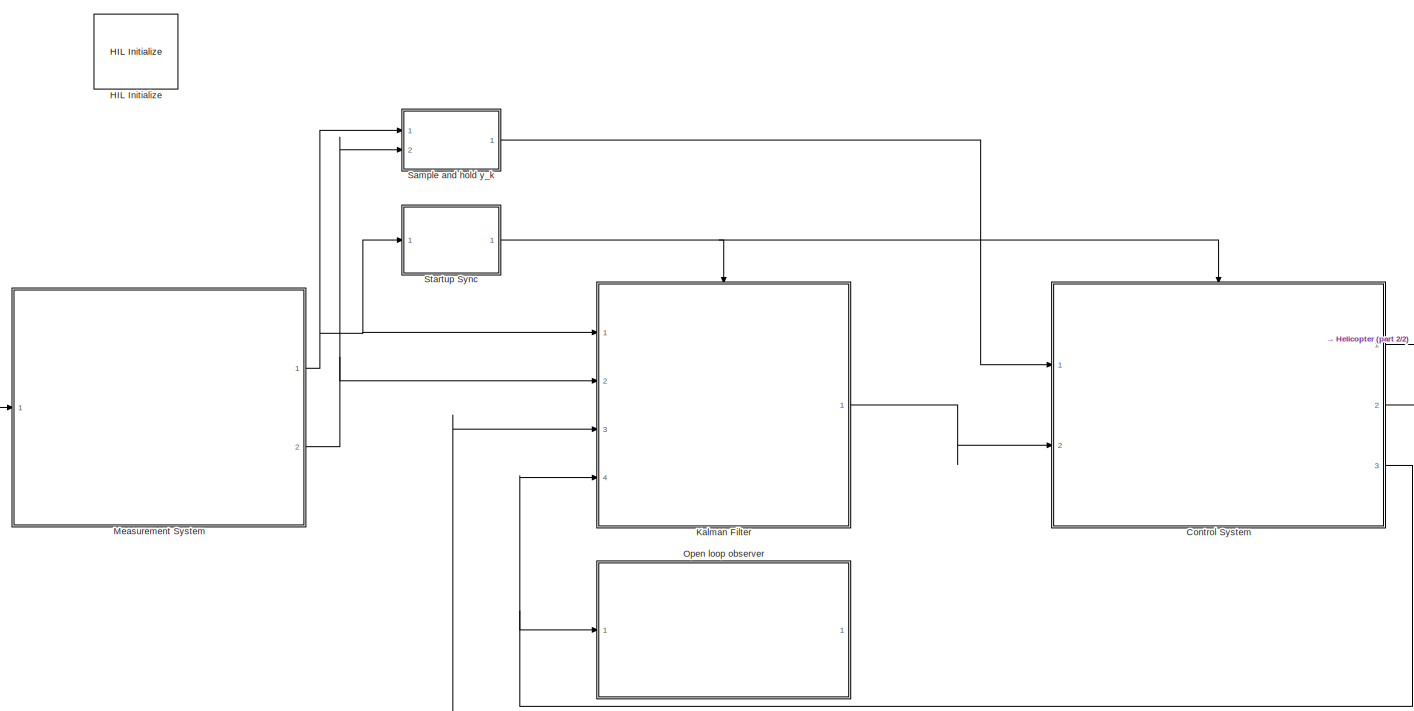
[diagram: root canvas - part 1/2, center side, full height]
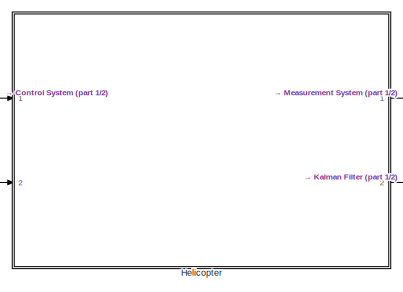
[diagram: root canvas - part 2/2, middle right region]
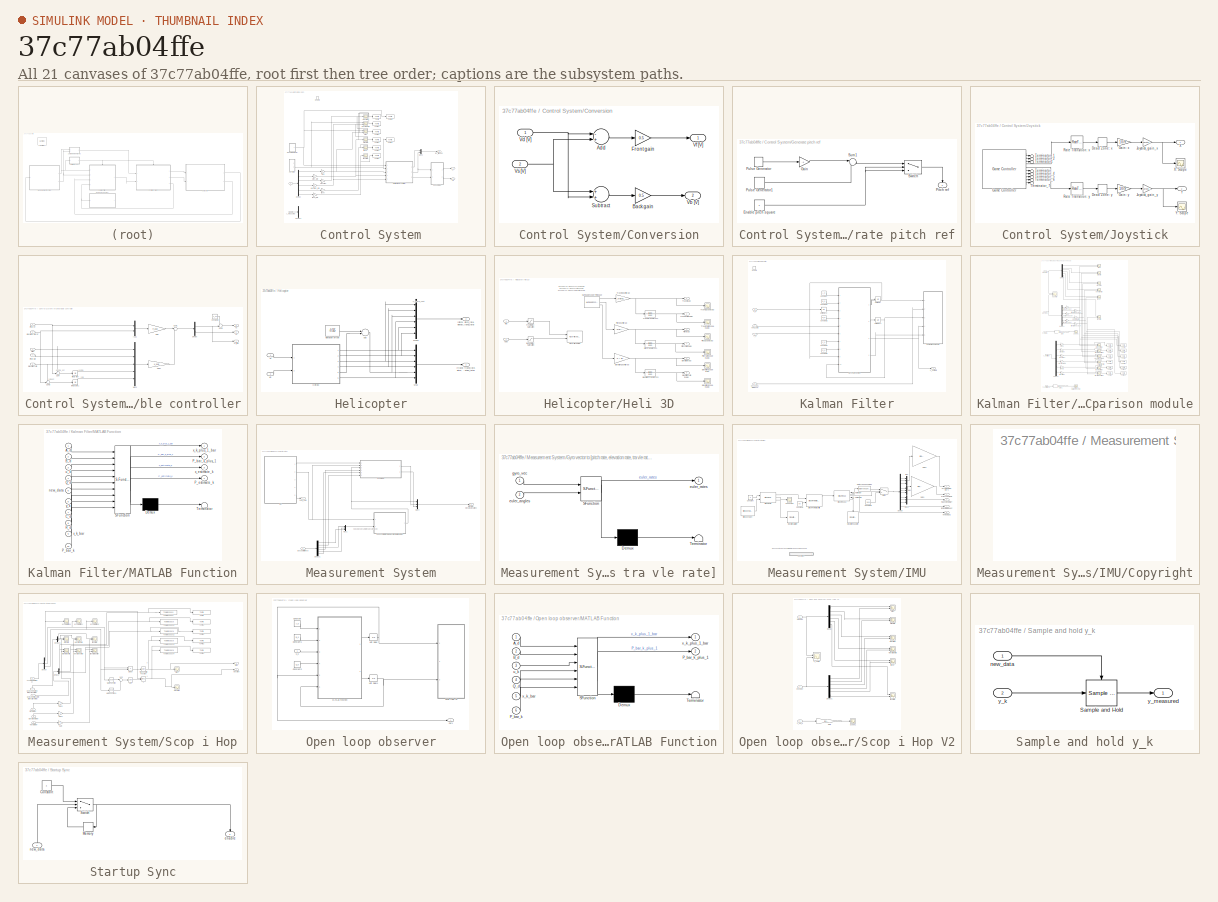
[diagram: thumbnail index - all 21 canvases of the model, root first then tree order]
MODEL slx_37c77ab04ffe
KIND model
CONFIG AbsTol = auto
CONFIG FixedStep = 0.002
CONFIG MaxStep = auto
CONFIG MinStep = auto
CONFIG PostLoadFcn = qc_set_target_type(getConfigSet(bdroot, 'QUARC Default Target Configuration'));
CONFIG RelTol = 1e-3
CONFIG SampleTimeConstraint = Unconstrained
CONFIG Solver = ode1
CONFIG SolverMode = Auto
CONFIG SolverName = ode1
CONFIG StartTime = 0.0
CONFIG StopTime = inf
BLOCK [SubSystem] Control System
  Ports = [2, 3, 1]
  RequestExecContextInheritance = off
  Variant = off
BLOCK [SubSystem] Control System/Conversion
  Ports = [2, 2]
  RequestExecContextInheritance = off
  Variant = off
BLOCK [Sum] Control System/Conversion/Add
  InputSameDT = off
  Inputs = -+
  OutDataTypeStr = Inherit: Inherit via internal rule
  Ports = [2, 1]
  SaturateOnIntegerOverflow = off
BLOCK [Gain] Control System/Conversion/Back gain
  Gain = 0.5
  OutDataTypeStr = Inherit: Inherit via internal rule
  ParamDataTypeStr = Inherit: Inherit via internal rule
  SaturateOnIntegerOverflow = off
BLOCK [Gain] Control System/Conversion/Front gain
  Gain = 0.5
  OutDataTypeStr = Inherit: Inherit via internal rule
  ParamDataTypeStr = Inherit: Inherit via internal rule
  SaturateOnIntegerOverflow = off
BLOCK [Sum] Control System/Conversion/Subtract
  InputSameDT = off
  OutDataTypeStr = Inherit: Inherit via internal rule
  Ports = [2, 1]
  SaturateOnIntegerOverflow = off
BLOCK [Outport] Control System/Conversion/Vb [V]
  IconDisplay = Port number
  Port = 2
BLOCK [Inport] Control System/Conversion/Vd [V]
  IconDisplay = Port number
BLOCK [Outport] Control System/Conversion/Vf [V]
  IconDisplay = Port number
BLOCK [Inport] Control System/Conversion/Vs [V]
  IconDisplay = Port number
  Port = 2
BLOCK [Demux] Control System/Demux
  DisplayOption = bar
  Outputs = 6
  Ports = [1, 6]
BLOCK [Demux] Control System/Demux1
  DisplayOption = bar
  Outputs = 5
  Ports = [1, 5]
BLOCK [EnablePort] Control System/Enable
  Ports = []
BLOCK [SubSystem] Control System/Generate pitch ref
  Ports = [0, 1]
  RequestExecContextInheritance = off
  Variant = off
BLOCK [Constant] Control System/Generate pitch ref/Enable pitch square
BLOCK [Gain] Control System/Generate pitch ref/Gain
  Gain = -1
  OutDataTypeStr = Inherit: Inherit via internal rule
  ParamDataTypeStr = Inherit: Inherit via internal rule
  SaturateOnIntegerOverflow = off
BLOCK [Outport] Control System/Generate pitch ref/Pitch ref
  IconDisplay = Port number
BLOCK [DiscretePulseGenerator] Control System/Generate pitch ref/Pulse Generator
  Amplitude = 0.5
  Period = 20
  PhaseDelay = 10
  Ports = [0, 1]
  PulseType = Time based
  PulseWidth = 25
BLOCK [DiscretePulseGenerator] Control System/Generate pitch ref/Pulse Generator1
  Amplitude = 0.5
  Period = 20
  PhaseDelay = 25
  Ports = [0, 1]
  PulseType = Time based
  PulseWidth = 25
BLOCK [Sum] Control System/Generate pitch ref/Sum1
  IconShape = round
  InputSameDT = off
  Inputs = |++
  OutDataTypeStr = Inherit: Inherit via internal rule
  Ports = [2, 1]
  SaturateOnIntegerOverflow = off
BLOCK [Switch] Control System/Generate pitch ref/Switch
  Criteria = u2 > Threshold
  InputSameDT = off
  SaturateOnIntegerOverflow = off
BLOCK [SubSystem] Control System/Joystick
  Ports = [0, 2]
  RequestExecContextInheritance = off
  Variant = off
BLOCK [DeadZone] Control System/Joystick/Dead Zone: x
  LowerValue = -0.1
  UpperValue = 0.1
BLOCK [DeadZone] Control System/Joystick/Dead Zone: y
  LowerValue = -0.1
  UpperValue = 0.1
BLOCK [Gain] Control System/Joystick/Gain: x
  Gain = 10/9
  OutDataTypeStr = Inherit: Inherit via internal rule
  ParamDataTypeStr = Inherit: Inherit via internal rule
  SaturateOnIntegerOverflow = off
BLOCK [Gain] Control System/Joystick/Gain: y
  Gain = 10/9
  OutDataTypeStr = Inherit: Inherit via internal rule
  ParamDataTypeStr = Inherit: Inherit via internal rule
  SaturateOnIntegerOverflow = off
BLOCK [Reference] Control System/Joystick/Game Controller  REF=quarc_library/Devices/Peripherals/Target/Game Controller
  Ports = [0, 10]
  SourceBlock = quarc_library/Devices/Peripherals/Target/Game Controller
  SourceType = Game Controller
BLOCK [Gain] Control System/Joystick/Joystick_gain_x
  Gain = Joystick_gain_x
  OutDataTypeStr = Inherit: Inherit via internal rule
  ParamDataTypeStr = Inherit: Inherit via internal rule
  SaturateOnIntegerOverflow = off
BLOCK [Gain] Control System/Joystick/Joystick_gain_y
  Gain = Joystick_gain_y
  OutDataTypeStr = Inherit: Inherit via internal rule
  ParamDataTypeStr = Inherit: Inherit via internal rule
  SaturateOnIntegerOverflow = off
BLOCK [RateTransition] Control System/Joystick/Rate Transition: x
BLOCK [RateTransition] Control System/Joystick/Rate Transition: y
BLOCK [Terminator] Control System/Joystick/Terminator
BLOCK [Terminator] Control System/Joystick/Terminator1
BLOCK [Terminator] Control System/Joystick/Terminator_1
BLOCK [Terminator] Control System/Joystick/Terminator_2
BLOCK [Terminator] Control System/Joystick/Terminator_4
BLOCK [Terminator] Control System/Joystick/Terminator_5
BLOCK [Terminator] Control System/Joystick/Terminator_6
BLOCK [Terminator] Control System/Joystick/Terminator_7
BLOCK [Outport] Control System/Joystick/X
  IconDisplay = Port number
BLOCK [Scope] Control System/Joystick/X: Scope
  Ports = [1]
  ScopeSpecificationString = Simulink.scopes.TimeScopeBlockCfg('CurrentConfiguration', extmgr.ConfigurationSet(extmgr.Configuration('Core','General UI',true),extmgr.Configuration('Core','Source UI',true),extmgr.Configuration('Sources','WiredSimulink',true,'DataLoggingVariableName','ScopeData7','DataLoggingSaveFormat','StructureWithTime','DataLoggingLimitDataPoints',true,'DataLoggingDecimation','1','DataLoggingDecimateData',tr...<+1695ch>
BLOCK [Outport] Control System/Joystick/Y
  IconDisplay = Port number
  Port = 2
BLOCK [Scope] Control System/Joystick/Y: Scope
  Ports = [1]
  ScopeSpecificationString = C++SS(StrPVP('Location','[894, 368, 1218, 604]'),StrPVP('Open','off'),MxPVP('AxesTitles',24,'struct(''axes1'',''%<SignalLabel>'')'),MxPVP('ScopeGraphics',28,'struct(''FigureColor'',''[0.5 0.5 0.5]'',''AxesColor'',''[0 0 0]'',''AxesTickColor'',''[1 1 1]'',''LineColors'',''[1 1 0;1 0 1;0 1 1;1 0 0;0 1 0;0 0 1]'',''LineStyles'',''-|-|-|-|-|-'',''LineWidths'',''[0.5 0.5 0.5 0.5 0.5 0.5]'',''MarkerStyl...<+340ch>
BLOCK [SubSystem] Control System/Multivariable controller
  Ports = [5, 3]
  RequestExecContextInheritance = off
  Variant = off
BLOCK [Constant] Control System/Multivariable controller/Constant2
  Value = v_s0
BLOCK [Demux] Control System/Multivariable controller/Demux
  DisplayOption = bar
  Outputs = 2
  Ports = [1, 2]
BLOCK [Inport] Control System/Multivariable controller/Elevation rate
  IconDisplay = Port number
  Port = 5
BLOCK [Inport] Control System/Multivariable controller/Elevation rate ref
  IconDisplay = Port number
  Port = 2
BLOCK [Gain] Control System/Multivariable controller/Gain
  Gain = F_aug
  Multiplication = Matrix(K*u) (u vector)
  OutDataTypeStr = Inherit: Inherit via internal rule
  ParamDataTypeStr = Inherit: Inherit via internal rule
  SaturateOnIntegerOverflow = off
BLOCK [Gain] Control System/Multivariable controller/Gain1
  Gain = K_aug
  Multiplication = Matrix(K*u) (u vector)
  OutDataTypeStr = Inherit: Inherit via internal rule
  ParamDataTypeStr = Inherit: Inherit via internal rule
  SaturateOnIntegerOverflow = off
BLOCK [Integrator] Control System/Multivariable controller/Integrator
  Ports = [1, 1]
BLOCK [Integrator] Control System/Multivariable controller/Integrator1
  Ports = [1, 1]
BLOCK [Mux] Control System/Multivariable controller/Mux2
  DisplayOption = bar
  Inputs = 5
  Ports = [5, 1]
BLOCK [Inport] Control System/Multivariable controller/Pitch
  IconDisplay = Port number
  Port = 3
BLOCK [Inport] Control System/Multivariable controller/Pitch rate
  IconDisplay = Port number
  Port = 4
BLOCK [Inport] Control System/Multivariable controller/Pitch ref 
  IconDisplay = Port number
BLOCK [Sum] Control System/Multivariable controller/Sum
  IconShape = round
  InputSameDT = off
  Inputs = +-|
  OutDataTypeStr = Inherit: Inherit via internal rule
  Ports = [2, 1]
  SaturateOnIntegerOverflow = off
BLOCK [Sum] Control System/Multivariable controller/Sum1
  IconShape = round
  InputSameDT = off
  Inputs = |+-
  OutDataTypeStr = Inherit: Inherit via internal rule
  Ports = [2, 1]
  SaturateOnIntegerOverflow = off
BLOCK [Sum] Control System/Multivariable controller/Sum2
  IconShape = round
  InputSameDT = off
  Inputs = ++|
  OutDataTypeStr = Inherit: Inherit via internal rule
  Ports = [2, 1]
  SaturateOnIntegerOverflow = off
BLOCK [Sum] Control System/Multivariable controller/Sum3
  IconShape = round
  InputSameDT = off
  Inputs = +-|
  OutDataTypeStr = Inherit: Inherit via internal rule
  Ports = [2, 1]
  SaturateOnIntegerOverflow = off
BLOCK [Outport] Control System/Multivariable controller/Vd
  IconDisplay = Port number
  Port = 2
BLOCK [Outport] Control System/Multivariable controller/Vs
  IconDisplay = Port number
  Port = 3
BLOCK [Outport] Control System/Multivariable controller/Vs_tilde
  IconDisplay = Port number
BLOCK [Mux] Control System/Multivariable controller/r vec
  DisplayOption = bar
  Inputs = 2
  Ports = [2, 1]
BLOCK [Mux] Control System/Mux2
  DisplayOption = bar
  Inputs = 2
  Ports = [2, 1]
BLOCK [Scope] Control System/Pitch
  NumInputPorts = 2
  Ports = [2]
  ScopeSpecificationString = Simulink.scopes.TimeScopeBlockCfg('CurrentConfiguration', extmgr.ConfigurationSet(extmgr.Configuration('Core','General UI',true),extmgr.Configuration('Core','Source UI',true),extmgr.Configuration('Sources','WiredSimulink',true,'DataLoggingVariableName','ScopeData1'),extmgr.Configuration('Visuals','Time Domain',true,'SerializedDisplays',{struct('MinYLimReal','-1.03836','MaxYLimReal','0.91585','YLab...<+1513ch>
BLOCK [ToFile] Control System/To File
  Filename = LQR\p_est.mat
  Ports = [1]
BLOCK [ToFile] Control System/To File1
  Filename = LQR\pr_est.mat
  Ports = [1]
BLOCK [ToFile] Control System/To File2
  Filename = LQR\e_est.mat
  Ports = [1]
BLOCK [ToFile] Control System/To File3
  Filename = LQR\er_est.mat
  Ports = [1]
BLOCK [ToFile] Control System/To File4
  Filename = LQR\t_est.mat
  Ports = [1]
BLOCK [ToFile] Control System/To File5
  Filename = LQR\tr_est.mat
  Ports = [1]
BLOCK [ToFile] Control System/To File6
  Filename = LQR\p_ref.mat
  Ports = [1]
BLOCK [ToFile] Control System/To File7
  Filename = LQR\er_ref.mat
  Ports = [1]
BLOCK [Outport] Control System/Vb
  IconDisplay = Port number
  Port = 2
BLOCK [Outport] Control System/Vf
  IconDisplay = Port number
BLOCK [Outport] Control System/[Vs_tilde, Vd]
  IconDisplay = Port number
  Port = 3
BLOCK [Scope] Control System/elevation
  Ports = [1]
  ScopeSpecificationString = Simulink.scopes.TimeScopeBlockCfg('CurrentConfiguration', extmgr.ConfigurationSet(extmgr.Configuration('Core','General UI',true),extmgr.Configuration('Core','Source UI',true),extmgr.Configuration('Sources','WiredSimulink',true,'DataLoggingVariableName','ScopeData4'),extmgr.Configuration('Visuals','Time Domain',true,'SerializedDisplays',{struct('MinYLimReal','-0.53766','MaxYLimReal','0.44957','YLab...<+1498ch>
BLOCK [Gain] Control System/elevation 
  OutDataTypeStr = Inherit: Inherit via internal rule
  ParamDataTypeStr = Inherit: Inherit via internal rule
  SaturateOnIntegerOverflow = off
BLOCK [Scope] Control System/elevation rate
  NumInputPorts = 2
  Ports = [2]
  ScopeSpecificationString = Simulink.scopes.TimeScopeBlockCfg('CurrentConfiguration', extmgr.ConfigurationSet(extmgr.Configuration('Core','General UI',true),extmgr.Configuration('Core','Source UI',true),extmgr.Configuration('Sources','WiredSimulink',true,'DataLoggingVariableName','ScopeData2'),extmgr.Configuration('Visuals','Time Domain',true,'SerializedDisplays',{struct('MinYLimReal','-0.25508','MaxYLimReal','0.40055','YLab...<+1516ch>
BLOCK [Gain] Control System/elevation_rate 
  OutDataTypeStr = Inherit: Inherit via internal rule
  ParamDataTypeStr = Inherit: Inherit via internal rule
  SaturateOnIntegerOverflow = off
BLOCK [Gain] Control System/pitch
  OutDataTypeStr = Inherit: Inherit via internal rule
  ParamDataTypeStr = Inherit: Inherit via internal rule
  SaturateOnIntegerOverflow = off
BLOCK [Scope] Control System/pitch rate
  Ports = [1]
  ScopeSpecificationString = Simulink.scopes.TimeScopeBlockCfg('CurrentConfiguration', extmgr.ConfigurationSet(extmgr.Configuration('Core','General UI',true),extmgr.Configuration('Core','Source UI',true),extmgr.Configuration('Sources','WiredSimulink',true,'DataLoggingVariableName','ScopeData3'),extmgr.Configuration('Visuals','Time Domain',true,'SerializedDisplays',{struct('MinYLimReal','-2.44677','MaxYLimReal','1.68861','YLab...<+1498ch>
BLOCK [Gain] Control System/pitch_rate 
  OutDataTypeStr = Inherit: Inherit via internal rule
  ParamDataTypeStr = Inherit: Inherit via internal rule
  SaturateOnIntegerOverflow = off
BLOCK [Scope] Control System/travel
  Ports = [1]
  ScopeSpecificationString = Simulink.scopes.TimeScopeBlockCfg('CurrentConfiguration', extmgr.ConfigurationSet(extmgr.Configuration('Core','General UI',true),extmgr.Configuration('Core','Source UI',true),extmgr.Configuration('Sources','WiredSimulink',true,'DataLoggingVariableName','ScopeData6'),extmgr.Configuration('Visuals','Time Domain',true,'SerializedDisplays',{struct('MinYLimReal','-14.3346','MaxYLimReal','30.30748','YLa...<+1500ch>
BLOCK [Gain] Control System/travel 
  OutDataTypeStr = Inherit: Inherit via internal rule
  ParamDataTypeStr = Inherit: Inherit via internal rule
  SaturateOnIntegerOverflow = off
BLOCK [Scope] Control System/travel rate
  Ports = [1]
  ScopeSpecificationString = Simulink.scopes.TimeScopeBlockCfg('CurrentConfiguration', extmgr.ConfigurationSet(extmgr.Configuration('Core','General UI',true),extmgr.Configuration('Core','Source UI',true),extmgr.Configuration('Sources','WiredSimulink',true,'DataLoggingVariableName','ScopeData5'),extmgr.Configuration('Visuals','Time Domain',true,'SerializedDisplays',{struct('MinYLimReal','-2.07659','MaxYLimReal','2.64661','YLab...<+1501ch>
BLOCK [Gain] Control System/travel_rate 
  OutDataTypeStr = Inherit: Inherit via internal rule
  ParamDataTypeStr = Inherit: Inherit via internal rule
  SaturateOnIntegerOverflow = off
BLOCK [Inport] Control System/x
  IconDisplay = Port number
  Port = 2
BLOCK [Inport] Control System/y_measured 
  IconDisplay = Port number
BLOCK [Reference] HIL Initialize  REF=quarc_library/Data Acquisition/Generic/Configuration/HIL Initialize
  AttributesFormatString = %<object_name> (%<board_type>-%<board_number>)
  Ports = []
  Priority = -99
  SourceBlock = quarc_library/Data Acquisition/Generic/Configuration/HIL Initialize
  SourceType = HIL Initialize
  UserDataPersistent = on
BLOCK [SubSystem] Helicopter
  Ports = [2, 2]
  RequestExecContextInheritance = off
  Variant = off
BLOCK [Sum] Helicopter/Add
  InputSameDT = off
  OutDataTypeStr = Inherit: Inherit via internal rule
  Ports = [2, 1]
  SaturateOnIntegerOverflow = off
BLOCK [SubSystem] Helicopter/Heli 3D
  Ports = [2, 6]
  RequestExecContextInheritance = off
  Variant = off
BLOCK [Saturate] Helicopter/Heli 3D/Back motor: Saturation
  InputPortMap = u0
  LowerLimit = -5
  Ports = [1, 1]
  UpperLimit = 5
BLOCK [Outport] Helicopter/Heli 3D/Elevation [rad]
  IconDisplay = Port number
  Port = 5
BLOCK [Outport] Helicopter/Heli 3D/Elevation rate [rad//s]
  IconDisplay = Port number
  Port = 6
BLOCK [Gain] Helicopter/Heli 3D/Elevation: Count to rad
  Gain = -2 * pi /4096
  OutDataTypeStr = Inherit: Inherit via internal rule
  ParamDataTypeStr = Inherit: Inherit via internal rule
  SaturateOnIntegerOverflow = off
BLOCK [Scope] Helicopter/Heli 3D/Elevation: Scope [rad//s]
  Ports = [1]
  ScopeSpecificationString = C++SS(StrPVP('Location','[1236, 673, 1560, 912]'),StrPVP('Open','off'),MxPVP('AxesTitles',24,'struct(''axes1'',''%<SignalLabel>'')'),MxPVP('ScopeGraphics',28,'struct(''FigureColor'',''[0.5 0.5 0.5]'',''AxesColor'',''[0 0 0]'',''AxesTickColor'',''[1 1 1]'',''LineColors'',''[1 1 0;1 0 1;0 1 1;1 0 0;0 1 0;0 0 1]'',''LineStyles'',''-|-|-|-|-|-'',''LineWidths'',''[0.5 0.5 0.5 0.5 0.5 0.5]'',''MarkerSty...<+342ch>
BLOCK [Scope] Helicopter/Heli 3D/Elevation: Scope [rad]
  Ports = [1]
  ScopeSpecificationString = Simulink.scopes.TimeScopeBlockCfg('CurrentConfiguration', extmgr.ConfigurationSet(extmgr.Configuration('Core','General UI',true),extmgr.Configuration('Core','Source UI',true),extmgr.Configuration('Sources','WiredSimulink',true,'DataLoggingVariableName','ScopeData12','DataLoggingSaveFormat','StructureWithTime','DataLoggingLimitDataPoints',true,'DataLoggingDecimation','1','DataLoggingDecimateData',t...<+1718ch>
BLOCK [TransferFcn] Helicopter/Heli 3D/Elevation: Transfer Fcn
  Denominator = [1 50]
  Numerator = [50 0]
BLOCK [Saturate] Helicopter/Heli 3D/Front motor: Saturation
  InputPortMap = u0
  LowerLimit = -5
  Ports = [1, 1]
  UpperLimit = 5
BLOCK [Reference] Helicopter/Heli 3D/HIL Read Encoder Timebase  REF=quarc_library/Data Acquisition/Generic/Timebases/HIL Read Encoder
Timebase
  AttributesFormatString = (%<object_name>)
  Ports = [0, 3]
  SourceBlock = quarc_library/Data Acquisition/Generic/Timebases/HIL Read Encoder\nTimebase
  SourceType = HIL Read Encoder Timebase
  UserDataPersistent = on
BLOCK [Reference] Helicopter/Heli 3D/HIL Write Analog  REF=quarc_library/Data Acquisition/Generic/Immediate I//O/HIL Write Analog
  AttributesFormatString = (%<object_name>)
  Ports = [2]
  SourceBlock = quarc_library/Data Acquisition/Generic/Immediate I//O/HIL Write Analog
  SourceType = HIL Write Analog
  UserDataPersistent = on
BLOCK [Outport] Helicopter/Heli 3D/Pitch [rad]
  IconDisplay = Port number
  Port = 3
BLOCK [Outport] Helicopter/Heli 3D/Pitch rate [rad//s]
  IconDisplay = Port number
  Port = 4
BLOCK [Gain] Helicopter/Heli 3D/Pitch: Count to rad
  Gain = -2*pi /4096
  OutDataTypeStr = Inherit: Inherit via internal rule
  ParamDataTypeStr = Inherit: Inherit via internal rule
  SaturateOnIntegerOverflow = off
BLOCK [Scope] Helicopter/Heli 3D/Pitch: Scope [rad]
  Ports = [1]
  ScopeSpecificationString = Simulink.scopes.TimeScopeBlockCfg('CurrentConfiguration', extmgr.ConfigurationSet(extmgr.Configuration('Core','General UI',true),extmgr.Configuration('Core','Source UI',true),extmgr.Configuration('Sources','WiredSimulink',true,'DataLoggingVariableName','ScopeData10','DataLoggingSaveFormat','StructureWithTime','DataLoggingLimitDataPoints',true,'DataLoggingDecimation','1','DataLoggingDecimateData',t...<+1672ch>
BLOCK [TransferFcn] Helicopter/Heli 3D/Pitch: Transfer Fcn
  Denominator = [1 50]
  Numerator = [50 0]
BLOCK [Scope] Helicopter/Heli 3D/Ptich rate: Scope [rad//s]
  Ports = [1]
  ScopeSpecificationString = C++SS(StrPVP('Location','[1236, 673, 1560, 912]'),StrPVP('Open','off'),MxPVP('AxesTitles',24,'struct(''axes1'',''%<SignalLabel>'')'),MxPVP('ScopeGraphics',28,'struct(''FigureColor'',''[0.5 0.5 0.5]'',''AxesColor'',''[0 0 0]'',''AxesTickColor'',''[1 1 1]'',''LineColors'',''[1 1 0;1 0 1;0 1 1;1 0 0;0 1 0;0 0 1]'',''LineStyles'',''-|-|-|-|-|-'',''LineWidths'',''[0.5 0.5 0.5 0.5 0.5 0.5]'',''MarkerSty...<+342ch>
BLOCK [Outport] Helicopter/Heli 3D/Travel [rad]
  IconDisplay = Port number
BLOCK [Outport] Helicopter/Heli 3D/Travel rate [rad//s]
  IconDisplay = Port number
  Port = 2
BLOCK [Scope] Helicopter/Heli 3D/Travel rate: Scope [rad//s]
  Ports = [1]
  ScopeSpecificationString = Simulink.scopes.TimeScopeBlockCfg('CurrentConfiguration', extmgr.ConfigurationSet(extmgr.Configuration('Core','General UI',true),extmgr.Configuration('Core','Source UI',true),extmgr.Configuration('Sources','WiredSimulink',true,'DataLoggingVariableName','ScopeData9','DataLoggingSaveFormat','StructureWithTime','DataLoggingLimitDataPoints',true,'DataLoggingDecimation','1','DataLoggingDecimateData',tr...<+1672ch>
BLOCK [Gain] Helicopter/Heli 3D/Travel: Count to rad
  Gain = 2*pi/8192
  OutDataTypeStr = Inherit: Inherit via internal rule
  ParamDataTypeStr = Inherit: Inherit via internal rule
  SaturateOnIntegerOverflow = off
BLOCK [Scope] Helicopter/Heli 3D/Travel: Scope [rad]
  Ports = [1]
  ScopeSpecificationString = Simulink.scopes.TimeScopeBlockCfg('CurrentConfiguration', extmgr.ConfigurationSet(extmgr.Configuration('Core','General UI',true),extmgr.Configuration('Core','Source UI',true),extmgr.Configuration('Sources','WiredSimulink',true,'DataLoggingVariableName','ScopeData8','DataLoggingSaveFormat','StructureWithTime','DataLoggingLimitDataPoints',true,'DataLoggingDecimation','1','DataLoggingDecimateData',tr...<+1672ch>
BLOCK [TransferFcn] Helicopter/Heli 3D/Travel: Transfer Fcn
  Denominator = [1 50]
  Numerator = [50 0]
BLOCK [Inport] Helicopter/Heli 3D/Vb [V]
  IconDisplay = Port number
  Port = 2
BLOCK [Inport] Helicopter/Heli 3D/Vf [V]
  IconDisplay = Port number
BLOCK [Mux] Helicopter/Mux
  DisplayOption = bar
  Inputs = 6
  Ports = [6, 1]
BLOCK [Mux] Helicopter/Mux3
  DisplayOption = bar
  Inputs = 6
  Ports = [6, 1]
BLOCK [Inport] Helicopter/Vb
  IconDisplay = Port number
  Port = 2
BLOCK [Inport] Helicopter/Vf
  IconDisplay = Port number
BLOCK [Outport] Helicopter/[pitch, pitch_rate, elevation, elevation_rate, travel, travel_rate]
  IconDisplay = Port number
  Port = 2
BLOCK [Outport] Helicopter/[travel, travel_rate, pitch, pitch_rate, elevation, elevation_rate]
  IconDisplay = Port number
BLOCK [Constant] Helicopter/elevation offset
  Value = -0.515
BLOCK [SubSystem] Kalman Filter
  Ports = [4, 1, 1]
  RequestExecContextInheritance = off
  Variant = off
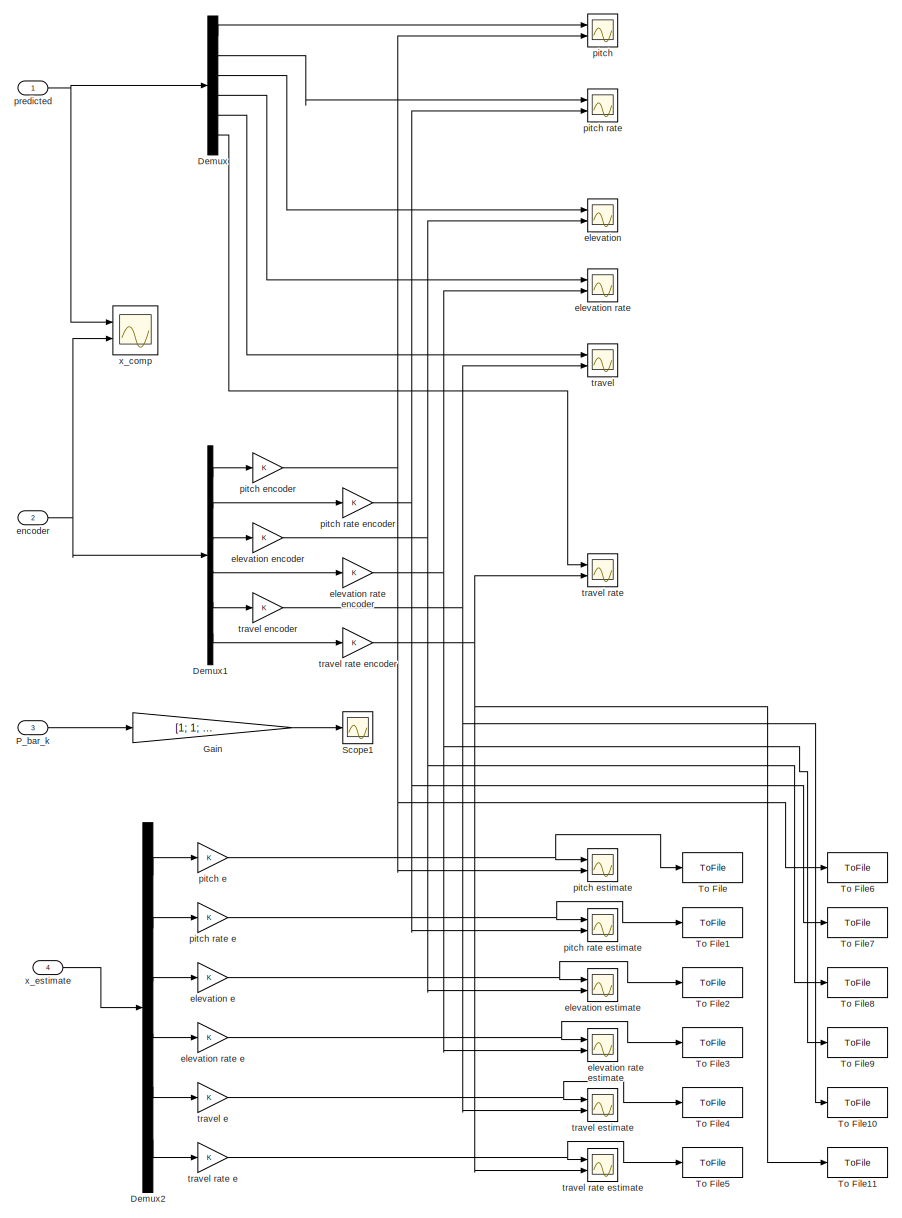
[diagram: Kalman Filter/Comparison module - part 1/2, most of the canvas]
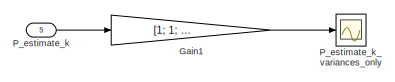
[diagram: Kalman Filter/Comparison module - part 2/2, bottom left region]
BLOCK [SubSystem] Kalman Filter/Comparison module
  Ports = [5]
  RequestExecContextInheritance = off
  Variant = off
BLOCK [Demux] Kalman Filter/Comparison module/Demux
  DisplayOption = bar
  Outputs = 6
  Ports = [1, 6]
BLOCK [Demux] Kalman Filter/Comparison module/Demux1
  DisplayOption = bar
  Outputs = 6
  Ports = [1, 6]
BLOCK [Demux] Kalman Filter/Comparison module/Demux2
  DisplayOption = bar
  Outputs = 6
  Ports = [1, 6]
BLOCK [Gain] Kalman Filter/Comparison module/Gain
  Gain = [1; 1; 1; 1; 1; 1]
  Multiplication = Matrix(u*K)
  OutDataTypeStr = Inherit: Inherit via internal rule
  ParamDataTypeStr = Inherit: Inherit via internal rule
  SaturateOnIntegerOverflow = off
BLOCK [Gain] Kalman Filter/Comparison module/Gain1
  Gain = [1; 1; 1; 1; 1; 1]
  Multiplication = Matrix(u*K)
  OutDataTypeStr = Inherit: Inherit via internal rule
  ParamDataTypeStr = Inherit: Inherit via internal rule
  SaturateOnIntegerOverflow = off
BLOCK [Inport] Kalman Filter/Comparison module/P_bar_k
  IconDisplay = Port number
  Port = 3
BLOCK [Inport] Kalman Filter/Comparison module/P_estimate_k
  IconDisplay = Port number
  Port = 5
BLOCK [Scope] Kalman Filter/Comparison module/P_estimate_k_variances_only
  Ports = [1]
  ScopeSpecificationString = Simulink.scopes.TimeScopeBlockCfg('CurrentConfiguration', extmgr.ConfigurationSet(extmgr.Configuration('Core','General UI',true),extmgr.Configuration('Core','Source UI',true),extmgr.Configuration('Sources','WiredSimulink',true,'DataLoggingVariableName','ScopeData1'),extmgr.Configuration('Visuals','Time Domain',true,'SerializedDisplays',{struct('MinYLimReal','-352.14706','MaxYLimReal','3169.10636',...<+1485ch>
BLOCK [Scope] Kalman Filter/Comparison module/Scope1
  Ports = [1]
  ScopeSpecificationString = Simulink.scopes.TimeScopeBlockCfg('CurrentConfiguration', extmgr.ConfigurationSet(extmgr.Configuration('Core','General UI',true),extmgr.Configuration('Core','Source UI',true),extmgr.Configuration('Sources','WiredSimulink',true,'DataLoggingVariableName','ScopeData3'),extmgr.Configuration('Visuals','Time Domain',true,'SerializedDisplays',{struct('MinYLimReal','-352.06813','MaxYLimReal','3169.09759',...<+1479ch>
BLOCK [ToFile] Kalman Filter/Comparison module/To File
  Filename = KalmanFilter\p_est.mat
  Ports = [1]
BLOCK [ToFile] Kalman Filter/Comparison module/To File1
  Filename = KalmanFilter\pr_est.mat
  Ports = [1]
BLOCK [ToFile] Kalman Filter/Comparison module/To File10
  Filename = KalmanFilter\t_enc.mat
  Ports = [1]
BLOCK [ToFile] Kalman Filter/Comparison module/To File11
  Filename = KalmanFilter\tr_enc.mat
  Ports = [1]
BLOCK [ToFile] Kalman Filter/Comparison module/To File2
  Filename = KalmanFilter\e_est.mat
  Ports = [1]
BLOCK [ToFile] Kalman Filter/Comparison module/To File3
  Filename = KalmanFilter\er_est.mat
  Ports = [1]
BLOCK [ToFile] Kalman Filter/Comparison module/To File4
  Filename = KalmanFilter\t_est.mat
  Ports = [1]
BLOCK [ToFile] Kalman Filter/Comparison module/To File5
  Filename = KalmanFilter\tr_est.mat
  Ports = [1]
BLOCK [ToFile] Kalman Filter/Comparison module/To File6
  Filename = KalmanFilter\p_enc.mat
  Ports = [1]
BLOCK [ToFile] Kalman Filter/Comparison module/To File7
  Filename = KalmanFilter\pr_enc.mat
  Ports = [1]
BLOCK [ToFile] Kalman Filter/Comparison module/To File8
  Filename = KalmanFilter\e_enc.mat
  Ports = [1]
BLOCK [ToFile] Kalman Filter/Comparison module/To File9
  Filename = KalmanFilter\er_enc.mat
  Ports = [1]
BLOCK [Scope] Kalman Filter/Comparison module/elevation
  NumInputPorts = 2
  Ports = [2]
  ScopeSpecificationString = Simulink.scopes.TimeScopeBlockCfg('CurrentConfiguration', extmgr.ConfigurationSet(extmgr.Configuration('Core','General UI',true),extmgr.Configuration('Core','Source UI',true),extmgr.Configuration('Sources','WiredSimulink',true,'DataLoggingVariableName','ScopeData3'),extmgr.Configuration('Visuals','Time Domain',true,'SerializedDisplays',{struct('MinYLimReal','-1.38805','MaxYLimReal','2.97063','YLab...<+1532ch>
BLOCK [Gain] Kalman Filter/Comparison module/elevation e
  OutDataTypeStr = Inherit: Inherit via internal rule
  ParamDataTypeStr = Inherit: Inherit via internal rule
  SaturateOnIntegerOverflow = off
BLOCK [Gain] Kalman Filter/Comparison module/elevation encoder
  OutDataTypeStr = Inherit: Inherit via internal rule
  ParamDataTypeStr = Inherit: Inherit via internal rule
  SaturateOnIntegerOverflow = off
BLOCK [Scope] Kalman Filter/Comparison module/elevation estimate
  NumInputPorts = 2
  Ports = [2]
  ScopeSpecificationString = Simulink.scopes.TimeScopeBlockCfg('CurrentConfiguration', extmgr.ConfigurationSet(extmgr.Configuration('Core','General UI',true),extmgr.Configuration('Core','Source UI',true),extmgr.Configuration('Sources','WiredSimulink',true,'DataLoggingVariableName','ScopeData5'),extmgr.Configuration('Visuals','Time Domain',true,'SerializedDisplays',{struct('MinYLimReal','-0.82443','MaxYLimReal','0.90042','YLab...<+1533ch>
BLOCK [Scope] Kalman Filter/Comparison module/elevation rate
  NumInputPorts = 2
  Ports = [2]
  ScopeSpecificationString = Simulink.scopes.TimeScopeBlockCfg('CurrentConfiguration', extmgr.ConfigurationSet(extmgr.Configuration('Core','General UI',true),extmgr.Configuration('Core','Source UI',true),extmgr.Configuration('Sources','WiredSimulink',true,'DataLoggingVariableName','ScopeData4'),extmgr.Configuration('Visuals','Time Domain',true,'SerializedDisplays',{struct('MinYLimReal','-0.91511','MaxYLimReal','0.75322','YLab...<+1524ch>
BLOCK [Gain] Kalman Filter/Comparison module/elevation rate e
  OutDataTypeStr = Inherit: Inherit via internal rule
  ParamDataTypeStr = Inherit: Inherit via internal rule
  SaturateOnIntegerOverflow = off
BLOCK [Gain] Kalman Filter/Comparison module/elevation rate encoder
  OutDataTypeStr = Inherit: Inherit via internal rule
  ParamDataTypeStr = Inherit: Inherit via internal rule
  SaturateOnIntegerOverflow = off
BLOCK [Scope] Kalman Filter/Comparison module/elevation rate estimate
  NumInputPorts = 2
  Ports = [2]
  ScopeSpecificationString = Simulink.scopes.TimeScopeBlockCfg('CurrentConfiguration', extmgr.ConfigurationSet(extmgr.Configuration('Core','General UI',true),extmgr.Configuration('Core','Source UI',true),extmgr.Configuration('Sources','WiredSimulink',true,'DataLoggingVariableName','ScopeData4'),extmgr.Configuration('Visuals','Time Domain',true,'SerializedDisplays',{struct('MinYLimReal','-0.39679','MaxYLimReal','0.52161','YLab...<+1526ch>
BLOCK [Inport] Kalman Filter/Comparison module/encoder
  IconDisplay = Port number
  Port = 2
BLOCK [Scope] Kalman Filter/Comparison module/pitch
  NumInputPorts = 2
  Ports = [2]
  ScopeSpecificationString = Simulink.scopes.TimeScopeBlockCfg('CurrentConfiguration', extmgr.ConfigurationSet(extmgr.Configuration('Core','General UI',true),extmgr.Configuration('Core','Source UI',true),extmgr.Configuration('Sources','WiredSimulink',true,'DataLoggingVariableName','ScopeData1'),extmgr.Configuration('Visuals','Time Domain',true,'SerializedDisplays',{struct('MinYLimReal','-0.00179','MaxYLimReal','0.01613','YLab...<+1503ch>
BLOCK [Gain] Kalman Filter/Comparison module/pitch e
  OutDataTypeStr = Inherit: Inherit via internal rule
  ParamDataTypeStr = Inherit: Inherit via internal rule
  SaturateOnIntegerOverflow = off
BLOCK [Gain] Kalman Filter/Comparison module/pitch encoder
  OutDataTypeStr = Inherit: Inherit via internal rule
  ParamDataTypeStr = Inherit: Inherit via internal rule
  SaturateOnIntegerOverflow = off
BLOCK [Scope] Kalman Filter/Comparison module/pitch estimate
  NumInputPorts = 2
  Ports = [2]
  ScopeSpecificationString = Simulink.scopes.TimeScopeBlockCfg('CurrentConfiguration', extmgr.ConfigurationSet(extmgr.Configuration('Core','General UI',true),extmgr.Configuration('Core','Source UI',true),extmgr.Configuration('Sources','WiredSimulink',true,'DataLoggingVariableName','ScopeData7'),extmgr.Configuration('Visuals','Time Domain',true,'TimeAxisLabels','All','SerializedDisplays',{struct('MinYLimReal','-0.39923','MaxYL...<+1546ch>
BLOCK [Scope] Kalman Filter/Comparison module/pitch rate
  NumInputPorts = 2
  Ports = [2]
  ScopeSpecificationString = Simulink.scopes.TimeScopeBlockCfg('CurrentConfiguration', extmgr.ConfigurationSet(extmgr.Configuration('Core','General UI',true),extmgr.Configuration('Core','Source UI',true),extmgr.Configuration('Sources','WiredSimulink',true,'DataLoggingVariableName','ScopeData2'),extmgr.Configuration('Visuals','Time Domain',true,'SerializedDisplays',{struct('MinYLimReal','-1.01055','MaxYLimReal','0.86819','YLab...<+1523ch>
BLOCK [Gain] Kalman Filter/Comparison module/pitch rate e
  OutDataTypeStr = Inherit: Inherit via internal rule
  ParamDataTypeStr = Inherit: Inherit via internal rule
  SaturateOnIntegerOverflow = off
BLOCK [Gain] Kalman Filter/Comparison module/pitch rate encoder
  OutDataTypeStr = Inherit: Inherit via internal rule
  ParamDataTypeStr = Inherit: Inherit via internal rule
  SaturateOnIntegerOverflow = off
BLOCK [Scope] Kalman Filter/Comparison module/pitch rate estimate
  NumInputPorts = 2
  Ports = [2]
  ScopeSpecificationString = Simulink.scopes.TimeScopeBlockCfg('CurrentConfiguration', extmgr.ConfigurationSet(extmgr.Configuration('Core','General UI',true),extmgr.Configuration('Core','Source UI',true),extmgr.Configuration('Sources','WiredSimulink',true,'DataLoggingVariableName','ScopeData6'),extmgr.Configuration('Visuals','Time Domain',true,'SerializedDisplays',{struct('MinYLimReal','-2.60123','MaxYLimReal','1.91309','YLab...<+1542ch>
BLOCK [Inport] Kalman Filter/Comparison module/predicted
  IconDisplay = Port number
BLOCK [Scope] Kalman Filter/Comparison module/travel
  NumInputPorts = 2
  Ports = [2]
  ScopeSpecificationString = Simulink.scopes.TimeScopeBlockCfg('CurrentConfiguration', extmgr.ConfigurationSet(extmgr.Configuration('Core','General UI',true),extmgr.Configuration('Core','Source UI',true),extmgr.Configuration('Sources','WiredSimulink',true,'DataLoggingVariableName','ScopeData5'),extmgr.Configuration('Visuals','Time Domain',true,'SerializedDisplays',{struct('MinYLimReal','-83.13583','MaxYLimReal','16.51861','YL...<+1528ch>
BLOCK [Gain] Kalman Filter/Comparison module/travel e
  OutDataTypeStr = Inherit: Inherit via internal rule
  ParamDataTypeStr = Inherit: Inherit via internal rule
  SaturateOnIntegerOverflow = off
BLOCK [Gain] Kalman Filter/Comparison module/travel encoder
  OutDataTypeStr = Inherit: Inherit via internal rule
  ParamDataTypeStr = Inherit: Inherit via internal rule
  SaturateOnIntegerOverflow = off
BLOCK [Scope] Kalman Filter/Comparison module/travel estimate
  NumInputPorts = 2
  Ports = [2]
  ScopeSpecificationString = Simulink.scopes.TimeScopeBlockCfg('CurrentConfiguration', extmgr.ConfigurationSet(extmgr.Configuration('Core','General UI',true),extmgr.Configuration('Core','Source UI',true),extmgr.Configuration('Sources','WiredSimulink',true,'DataLoggingVariableName','ScopeData9'),extmgr.Configuration('Visuals','Time Domain',true,'SerializedDisplays',{struct('MinYLimReal','-24.71171','MaxYLimReal','24.58583','YL...<+1531ch>
BLOCK [Scope] Kalman Filter/Comparison module/travel rate
  NumInputPorts = 2
  Ports = [2]
  ScopeSpecificationString = Simulink.scopes.TimeScopeBlockCfg('CurrentConfiguration', extmgr.ConfigurationSet(extmgr.Configuration('Core','General UI',true),extmgr.Configuration('Core','Source UI',true),extmgr.Configuration('Sources','WiredSimulink',true,'DataLoggingVariableName','ScopeData6'),extmgr.Configuration('Visuals','Time Domain',true,'SerializedDisplays',{struct('MinYLimReal','-1.14008','MaxYLimReal','0.9461','YLabe...<+1521ch>
BLOCK [Gain] Kalman Filter/Comparison module/travel rate e
  OutDataTypeStr = Inherit: Inherit via internal rule
  ParamDataTypeStr = Inherit: Inherit via internal rule
  SaturateOnIntegerOverflow = off
BLOCK [Gain] Kalman Filter/Comparison module/travel rate encoder
  OutDataTypeStr = Inherit: Inherit via internal rule
  ParamDataTypeStr = Inherit: Inherit via internal rule
  SaturateOnIntegerOverflow = off
BLOCK [Scope] Kalman Filter/Comparison module/travel rate estimate
  NumInputPorts = 2
  Ports = [2]
  ScopeSpecificationString = Simulink.scopes.TimeScopeBlockCfg('CurrentConfiguration', extmgr.ConfigurationSet(extmgr.Configuration('Core','General UI',true),extmgr.Configuration('Core','Source UI',true),extmgr.Configuration('Sources','WiredSimulink',true,'DataLoggingVariableName','ScopeData8'),extmgr.Configuration('Visuals','Time Domain',true,'SerializedDisplays',{struct('MinYLimReal','-3.81966','MaxYLimReal','3.61221','YLab...<+1524ch>
BLOCK [Scope] Kalman Filter/Comparison module/x_comp
  NumInputPorts = 2
  Ports = [2]
  ScopeSpecificationString = Simulink.scopes.TimeScopeBlockCfg('CurrentConfiguration', extmgr.ConfigurationSet(extmgr.Configuration('Core','General UI',true),extmgr.Configuration('Core','Source UI',true),extmgr.Configuration('Sources','WiredSimulink',true,'DataLoggingVariableName','ScopeData2'),extmgr.Configuration('Visuals','Time Domain',true,'SerializedDisplays',{struct('MinYLimReal','-2.58332','MaxYLimReal','6.37609','YLab...<+1838ch>
BLOCK [Inport] Kalman Filter/Comparison module/x_estimate 
  IconDisplay = Port number
  Port = 4
BLOCK [Constant] Kalman Filter/Constant
  Value = A_d
BLOCK [Constant] Kalman Filter/Constant1
  Value = B_d
BLOCK [Constant] Kalman Filter/Constant2
  Value = Q_d
BLOCK [Constant] Kalman Filter/Constant4
  Value = C_d
BLOCK [Constant] Kalman Filter/Constant5
  Value = R_d
BLOCK [EnablePort] Kalman Filter/Enable
  Ports = []
BLOCK [SubSystem] Kalman Filter/MATLAB Function
  ErrorFcn = Stateflow.Translate.translate
  PermitHierarchicalResolution = ExplicitOnly
  Ports = [10, 4]
  RequestExecContextInheritance = off
  SFBlockType = MATLAB Function
  TreatAsAtomicUnit = on
  Variant = off
BLOCK [Demux] Kalman Filter/MATLAB Function/ Demux 
  Outputs = 1
  Ports = [1, 1]
BLOCK [S-Function] Kalman Filter/MATLAB Function/ SFunction 
  EnableBusSupport = on
  FunctionName = sf_sfun
  PortCounts = [10 5]
  Ports = [10, 5]
  SFunctionDeploymentMode = off
  Tag = Stateflow S-Function heli_q8 1
BLOCK [Terminator] Kalman Filter/MATLAB Function/ Terminator 
BLOCK [Inport] Kalman Filter/MATLAB Function/A_d
  IconDisplay = Port number
BLOCK [Inport] Kalman Filter/MATLAB Function/B_d
  IconDisplay = Port number
  Port = 2
BLOCK [Inport] Kalman Filter/MATLAB Function/C_d
  IconDisplay = Port number
  Port = 7
BLOCK [Inport] Kalman Filter/MATLAB Function/P_bar_k
  IconDisplay = Port number
  Port = 10
BLOCK [Outport] Kalman Filter/MATLAB Function/P_bar_k_plus_1
  IconDisplay = Port number
  Port = 2
BLOCK [Outport] Kalman Filter/MATLAB Function/P_estimate_k
  IconDisplay = Port number
  Port = 4
BLOCK [Inport] Kalman Filter/MATLAB Function/Q_d
  IconDisplay = Port number
  Port = 4
BLOCK [Inport] Kalman Filter/MATLAB Function/R_d
  IconDisplay = Port number
  Port = 8
BLOCK [Inport] Kalman Filter/MATLAB Function/new_data
  IconDisplay = Port number
  Port = 5
BLOCK [Inport] Kalman Filter/MATLAB Function/u_k
  IconDisplay = Port number
  Port = 3
BLOCK [Outport] Kalman Filter/MATLAB Function/x_estimate_k
  IconDisplay = Port number
  Port = 3
BLOCK [Inport] Kalman Filter/MATLAB Function/x_k_bar
  IconDisplay = Port number
  Port = 9
BLOCK [Outport] Kalman Filter/MATLAB Function/x_k_plus_1_bar
  IconDisplay = Port number
BLOCK [Inport] Kalman Filter/MATLAB Function/y_k
  IconDisplay = Port number
  Port = 6
BLOCK [UnitDelay] Kalman Filter/Unit Delay
  InitialCondition = [0; 0; 0; 0; 0; 0]
  InputProcessing = Elements as channels (sample based)
  SampleTime = -1
BLOCK [UnitDelay] Kalman Filter/Unit Delay1
  InitialCondition = P_0
  InputProcessing = Elements as channels (sample based)
  SampleTime = -1
BLOCK [UnitDelay] Kalman Filter/Unit Delay2
  InputProcessing = Elements as channels (sample based)
  SampleTime = -1
BLOCK [Inport] Kalman Filter/encouder_reference
  IconDisplay = Port number
  Port = 3
BLOCK [Inport] Kalman Filter/new_data
  IconDisplay = Port number
BLOCK [Inport] Kalman Filter/u_k
  IconDisplay = Port number
  Port = 4
BLOCK [Outport] Kalman Filter/x_estimate
  IconDisplay = Port number
BLOCK [Inport] Kalman Filter/y_k
  IconDisplay = Port number
  Port = 2
BLOCK [SubSystem] Measurement System
  Ports = [1, 2]
  RequestExecContextInheritance = off
  Variant = off
BLOCK [Demux] Measurement System/Demux1
  DisplayOption = bar
  Outputs = 6
  Ports = [1, 6]
BLOCK [Inport] Measurement System/Encoder refrence
  IconDisplay = Port number
BLOCK [SubSystem] Measurement System/Gyro vector to [pitch rate, elevation rate, tra vle rate]
  ErrorFcn = Stateflow.Translate.translate
  PermitHierarchicalResolution = ExplicitOnly
  Ports = [2, 1]
  RequestExecContextInheritance = off
  SFBlockType = MATLAB Function
  TreatAsAtomicUnit = on
  Variant = off
BLOCK [Demux] Measurement System/Gyro vector to [pitch rate, elevation rate, tra vle rate]/ Demux 
  Outputs = 1
  Ports = [1, 1]
BLOCK [S-Function] Measurement System/Gyro vector to [pitch rate, elevation rate, tra vle rate]/ SFunction 
  EnableBusSupport = on
  FunctionName = sf_sfun
  PortCounts = [2 2]
  Ports = [2, 2]
  SFunctionDeploymentMode = off
  Tag = Stateflow S-Function heli_q8 2
BLOCK [Terminator] Measurement System/Gyro vector to [pitch rate, elevation rate, tra vle rate]/ Terminator 
BLOCK [Inport] Measurement System/Gyro vector to [pitch rate, elevation rate, tra vle rate]/euler_angles
  IconDisplay = Port number
  Port = 2
BLOCK [Outport] Measurement System/Gyro vector to [pitch rate, elevation rate, tra vle rate]/euler_rates
  IconDisplay = Port number
BLOCK [Inport] Measurement System/Gyro vector to [pitch rate, elevation rate, tra vle rate]/gyro_vec
  IconDisplay = Port number
BLOCK [SubSystem] Measurement System/IMU
  Ports = [0, 5]
  RequestExecContextInheritance = off
  Variant = off
BLOCK [Scope] Measurement System/IMU/Connected
  Ports = [1]
  ScopeSpecificationString = C++SS(StrPVP('Location','[9, 751, 333, 990]'),StrPVP('Open','off'),MxPVP('AxesTitles',24,'struct(''axes1'',''%<SignalLabel>'')'),StrPVP('DataFormat','StructureWithTime'),StrPVP('BlockParamSampleTime','0'),StrPVP('LimitDataPoints','on'),StrPVP('Decimation','1'),StrPVP('BlockParamSampleInput','off'),StrPVP('SaveName','ScopeData'),StrPVP('SaveName','ScopeData6'))
BLOCK [Constant] Measurement System/IMU/Constant
  Value = 0
BLOCK [Constant] Measurement System/IMU/Constant1
  Value = 65
BLOCK [Constant] Measurement System/IMU/Constant2
  Value = NaN
BLOCK [SubSystem] Measurement System/IMU/<copyright redacted>
  OpenFcn = web('http://www.quanser.com/');
  Permissions = NoReadOrWrite
  PermitHierarchicalResolution = None
  Ports = []
  RequestExecContextInheritance = off
  Variant = off
BLOCK [DataTypeConversion] Measurement System/IMU/Data Type Conversion
  OutDataTypeStr = double
  RndMeth = Floor
  SaturateOnIntegerOverflow = off
BLOCK [Demux] Measurement System/IMU/Demux
  DisplayOption = bar
  Outputs = 10
  Ports = [1, 10]
BLOCK [Gain] Measurement System/IMU/Gain1
  Gain = [ 0, 0, 1; 0, 1, 0; -1, 0, 0]
  Multiplication = Matrix(K*u) (u vector)
  OutDataTypeStr = Inherit: Inherit via internal rule
  ParamDataTypeStr = Inherit: Inherit via internal rule
  SaturateOnIntegerOverflow = off
BLOCK [Gain] Measurement System/IMU/Gain2
  Gain = [ 0, 0, 1; 0, 1, 0; -1, 0, 0]
  Multiplication = Matrix(K*u) (u vector)
  OutDataTypeStr = Inherit: Inherit via internal rule
  ParamDataTypeStr = Inherit: Inherit via internal rule
  SaturateOnIntegerOverflow = off
BLOCK [Mux] Measurement System/IMU/Mux
  DisplayOption = bar
  Inputs = 3
  Ports = [3, 1]
BLOCK [Mux] Measurement System/IMU/Mux1
  DisplayOption = bar
  Inputs = 3
  Ports = [3, 1]
BLOCK [Mux] Measurement System/IMU/Mux2
  DisplayOption = bar
  Inputs = 3
  Ports = [3, 1]
BLOCK [Outport] Measurement System/IMU/New data, 0//1
  IconDisplay = Port number
  Port = 5
BLOCK [Reference] Measurement System/IMU/Stop with Call Error  REF=quarc_library/Sinks/Error Handling/Stop with Error
  Ports = [1]
  SourceBlock = quarc_library/Sinks/Error Handling/Stop with Error
  SourceType = Stop with Error
BLOCK [Reference] Measurement System/IMU/Stop with Read Error  REF=quarc_library/Sinks/Error Handling/Stop with Error
  Ports = [1]
  SourceBlock = quarc_library/Sinks/Error Handling/Stop with Error
  SourceType = Stop with Error
BLOCK [Reference] Measurement System/IMU/Stream Call1  REF=quarc_library/Communications/Intermediate/Stream Call
  Ports = [2, 3]
  SourceBlock = quarc_library/Communications/Intermediate/Stream Call
  SourceType = Stream Call
BLOCK [Reference] Measurement System/IMU/Stream Formatted Write  REF=quarc_library/Communications/Intermediate/Stream Formatted
Write
  Ports = [2, 5]
  SourceBlock = quarc_library/Communications/Intermediate/Stream Formatted\nWrite
  SourceType = Stream Formatted Write
BLOCK [Reference] Measurement System/IMU/Stream Read1  REF=quarc_library/Communications/Intermediate/Stream Read
  Ports = [1, 5]
  SourceBlock = quarc_library/Communications/Intermediate/Stream Read
  SourceType = Stream Read
BLOCK [Reference] Measurement System/IMU/String Constant  REF=quarc_library/Strings/String Constant
  AttributesFormatString = "serial://IMU:3?baud=115200,word=8,parity=none,stop=1"
  Ports = [0, 1]
  SourceBlock = quarc_library/Strings/String Constant
  SourceType = String Constant
BLOCK [Switch] Measurement System/IMU/Switch
  Criteria = u2 > Threshold
  InputSameDT = off
  SaturateOnIntegerOverflow = off
BLOCK [Terminator] Measurement System/IMU/Terminator
BLOCK [Terminator] Measurement System/IMU/Terminator1
BLOCK [Outport] Measurement System/IMU/accelerometer, m//s^2
  IconDisplay = Port number
BLOCK [Outport] Measurement System/IMU/gyroscope, rad//s
  IconDisplay = Port number
  Port = 2
BLOCK [Outport] Measurement System/IMU/magnetometer, uT
  IconDisplay = Port number
  Port = 3
BLOCK [Outport] Measurement System/IMU/temperature, deg C
  IconDisplay = Port number
  Port = 4
BLOCK [Mux] Measurement System/Mux1
  DisplayOption = bar
  Inputs = 3
  Ports = [3, 1]
BLOCK [Mux] Measurement System/Mux4
  DisplayOption = bar
  Inputs = 3
  Ports = [3, 1]
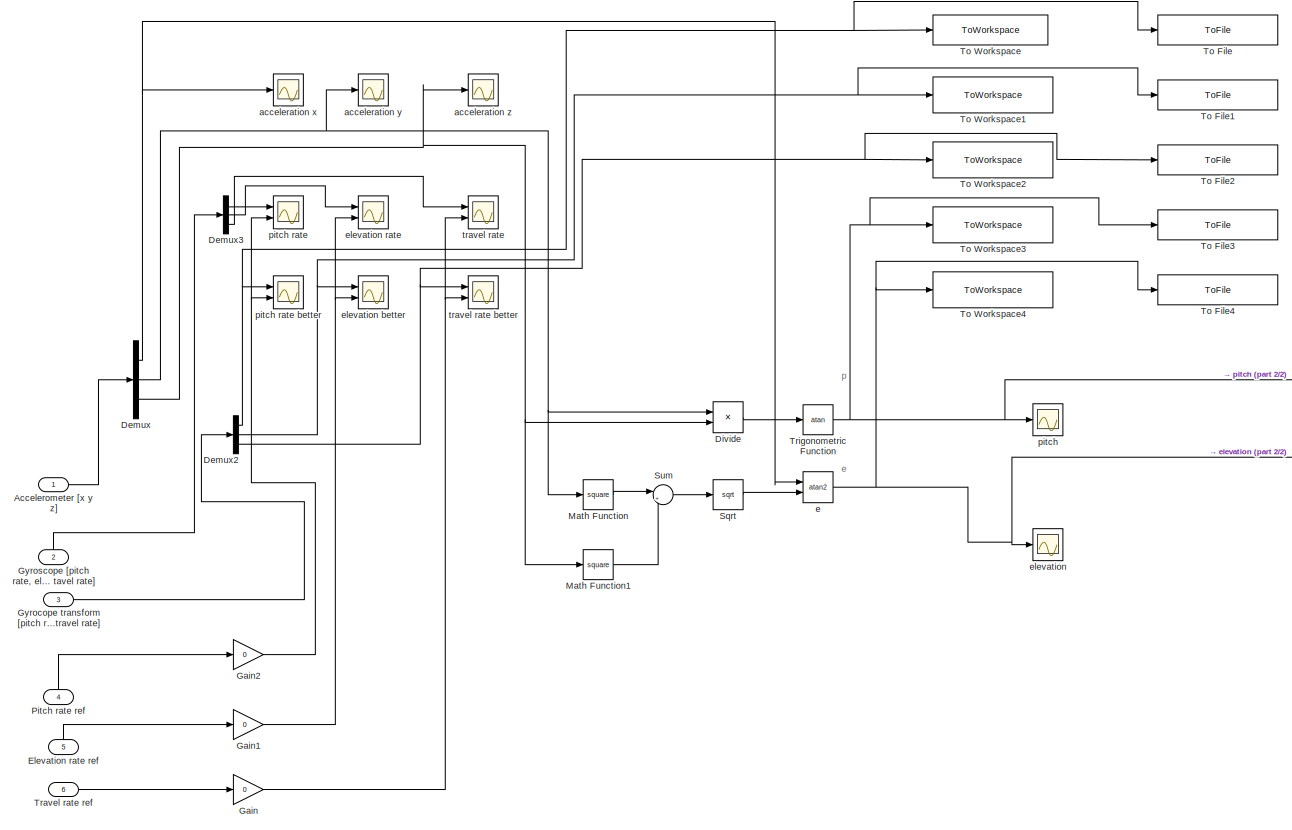
[diagram: Measurement System/Scop i Hop - part 1/2, most of the canvas]
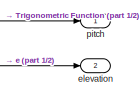
[diagram: Measurement System/Scop i Hop - part 2/2, middle right region]
BLOCK [SubSystem] Measurement System/Scop i Hop
  Ports = [6, 2]
  RequestExecContextInheritance = off
  Variant = off
BLOCK [Inport] Measurement System/Scop i Hop/Accelerometer [x y z]
  IconDisplay = Port number
BLOCK [Demux] Measurement System/Scop i Hop/Demux
  DisplayOption = bar
  Outputs = 3
  Ports = [1, 3]
BLOCK [Demux] Measurement System/Scop i Hop/Demux2
  DisplayOption = bar
  Outputs = 3
  Ports = [1, 3]
BLOCK [Demux] Measurement System/Scop i Hop/Demux3
  DisplayOption = bar
  Outputs = 3
  Ports = [1, 3]
BLOCK [Product] Measurement System/Scop i Hop/Divide
  InputSameDT = off
  Inputs = */
  OutDataTypeStr = Inherit: Inherit via internal rule
  Ports = [2, 1]
  RndMeth = Floor
  SaturateOnIntegerOverflow = off
BLOCK [Inport] Measurement System/Scop i Hop/Elevation rate ref
  IconDisplay = Port number
  Port = 5
BLOCK [Gain] Measurement System/Scop i Hop/Gain
  Gain = 0
  OutDataTypeStr = Inherit: Inherit via internal rule
  ParamDataTypeStr = Inherit: Inherit via internal rule
  SaturateOnIntegerOverflow = off
BLOCK [Gain] Measurement System/Scop i Hop/Gain1
  Gain = 0
  OutDataTypeStr = Inherit: Inherit via internal rule
  ParamDataTypeStr = Inherit: Inherit via internal rule
  SaturateOnIntegerOverflow = off
BLOCK [Gain] Measurement System/Scop i Hop/Gain2
  Gain = 0
  OutDataTypeStr = Inherit: Inherit via internal rule
  ParamDataTypeStr = Inherit: Inherit via internal rule
  SaturateOnIntegerOverflow = off
BLOCK [Inport] Measurement System/Scop i Hop/Gyrocope transform [pitch rate, elevation rate, travel rate]
  IconDisplay = Port number
  Port = 3
BLOCK [Inport] Measurement System/Scop i Hop/Gyroscope [pitch rate, elevation rate,  tavel rate]
  IconDisplay = Port number
  Port = 2
BLOCK [Math] Measurement System/Scop i Hop/Math Function
  Operator = square
  Ports = [1, 1]
BLOCK [Math] Measurement System/Scop i Hop/Math Function1
  Operator = square
  Ports = [1, 1]
BLOCK [Inport] Measurement System/Scop i Hop/Pitch rate ref
  IconDisplay = Port number
  Port = 4
BLOCK [Sqrt] Measurement System/Scop i Hop/Sqrt
BLOCK [Sum] Measurement System/Scop i Hop/Sum
  IconShape = round
  InputSameDT = off
  Inputs = |++
  OutDataTypeStr = Inherit: Inherit via internal rule
  Ports = [2, 1]
  SaturateOnIntegerOverflow = off
BLOCK [ToFile] Measurement System/Scop i Hop/To File
  Filename = pitch_rate_imu.mat
  Ports = [1]
BLOCK [ToFile] Measurement System/Scop i Hop/To File1
  Filename = elevation_rate_imu.mat
  Ports = [1]
BLOCK [ToFile] Measurement System/Scop i Hop/To File2
  Filename = travel_rate_imu.mat
  Ports = [1]
BLOCK [ToFile] Measurement System/Scop i Hop/To File3
  Filename = pitch_imu.mat
  Ports = [1]
BLOCK [ToFile] Measurement System/Scop i Hop/To File4
  Filename = elevation_imu.mat
  Ports = [1]
BLOCK [ToWorkspace] Measurement System/Scop i Hop/To Workspace
  FixptAsFi = on
  MaxDataPoints = inf
  Ports = [1]
  SampleTime = -1
  Save2DSignal = 3-D array (concatenate along third dimension)
  VariableName = pitch_rate_imu
BLOCK [ToWorkspace] Measurement System/Scop i Hop/To Workspace1
  FixptAsFi = on
  MaxDataPoints = inf
  Ports = [1]
  SampleTime = -1
  Save2DSignal = 3-D array (concatenate along third dimension)
  VariableName = elevation_rate_imu
BLOCK [ToWorkspace] Measurement System/Scop i Hop/To Workspace2
  FixptAsFi = on
  MaxDataPoints = inf
  Ports = [1]
  SampleTime = -1
  Save2DSignal = 3-D array (concatenate along third dimension)
  VariableName = travel_rate_imu
BLOCK [ToWorkspace] Measurement System/Scop i Hop/To Workspace3
  FixptAsFi = on
  MaxDataPoints = inf
  Ports = [1]
  SampleTime = -1
  Save2DSignal = 3-D array (concatenate along third dimension)
  VariableName = pitch_imu
BLOCK [ToWorkspace] Measurement System/Scop i Hop/To Workspace4
  FixptAsFi = on
  MaxDataPoints = inf
  Ports = [1]
  SampleTime = -1
  Save2DSignal = 3-D array (concatenate along third dimension)
  VariableName = elevation_imu
BLOCK [Inport] Measurement System/Scop i Hop/Travel rate ref
  IconDisplay = Port number
  Port = 6
BLOCK [Trigonometry] Measurement System/Scop i Hop/Trigonometric Function
  Operator = atan
  Ports = [1, 1]
BLOCK [Scope] Measurement System/Scop i Hop/acceleration x
  Ports = [1]
  ScopeSpecificationString = Simulink.scopes.TimeScopeBlockCfg('CurrentConfiguration', extmgr.ConfigurationSet(extmgr.Configuration('Core','General UI',true),extmgr.Configuration('Core','Source UI',true),extmgr.Configuration('Sources','WiredSimulink',true,'DataLoggingVariableName','ScopeData4'),extmgr.Configuration('Visuals','Time Domain',true,'SerializedDisplays',{struct('MinYLimReal','-24.5056','MaxYLimReal','24.40744','YLa...<+1445ch>
BLOCK [Scope] Measurement System/Scop i Hop/acceleration y
  Ports = [1]
  ScopeSpecificationString = Simulink.scopes.TimeScopeBlockCfg('CurrentConfiguration', extmgr.ConfigurationSet(extmgr.Configuration('Core','General UI',true),extmgr.Configuration('Core','Source UI',true),extmgr.Configuration('Sources','WiredSimulink',true,'DataLoggingVariableName','ScopeData5'),extmgr.Configuration('Visuals','Time Domain',true,'SerializedDisplays',{struct('MinYLimReal','-14.26927','MaxYLimReal','15.8184','YLa...<+1446ch>
BLOCK [Scope] Measurement System/Scop i Hop/acceleration z 
  Ports = [1]
  ScopeSpecificationString = Simulink.scopes.TimeScopeBlockCfg('CurrentConfiguration', extmgr.ConfigurationSet(extmgr.Configuration('Core','General UI',true),extmgr.Configuration('Core','Source UI',true),extmgr.Configuration('Sources','WiredSimulink',true,'DataLoggingVariableName','ScopeData6'),extmgr.Configuration('Visuals','Time Domain',true,'SerializedDisplays',{struct('MinYLimReal','-23.35955','MaxYLimReal','14.0989','YLa...<+1449ch>
BLOCK [Trigonometry] Measurement System/Scop i Hop/e
  Operator = atan2
  Ports = [2, 1]
BLOCK [Scope] Measurement System/Scop i Hop/elevation
  Ports = [1]
  ScopeSpecificationString = Simulink.scopes.TimeScopeBlockCfg('CurrentConfiguration', extmgr.ConfigurationSet(extmgr.Configuration('Core','General UI',true),extmgr.Configuration('Core','Source UI',true),extmgr.Configuration('Sources','WiredSimulink',true,'DataLoggingVariableName','ScopeData3'),extmgr.Configuration('Visuals','Time Domain',true,'SerializedDisplays',{struct('MinYLimReal','-1.25549','MaxYLimReal','1.57898','YLab...<+1438ch>
BLOCK [Outport] Measurement System/Scop i Hop/elevation 
  IconDisplay = Port number
  Port = 2
BLOCK [Scope] Measurement System/Scop i Hop/elevation better
  NumInputPorts = 2
  Ports = [2]
  ScopeSpecificationString = Simulink.scopes.TimeScopeBlockCfg('CurrentConfiguration', extmgr.ConfigurationSet(extmgr.Configuration('Core','General UI',true),extmgr.Configuration('Core','Source UI',true),extmgr.Configuration('Sources','WiredSimulink',true,'DataLoggingVariableName','ScopeData2'),extmgr.Configuration('Visuals','Time Domain',true,'SerializedDisplays',{struct('MinYLimReal','-0.60069','MaxYLimReal','0.72019','YLab...<+1498ch>
BLOCK [Scope] Measurement System/Scop i Hop/elevation rate 
  NumInputPorts = 2
  Ports = [2]
  ScopeSpecificationString = Simulink.scopes.TimeScopeBlockCfg('CurrentConfiguration', extmgr.ConfigurationSet(extmgr.Configuration('Core','General UI',true),extmgr.Configuration('Core','Source UI',true),extmgr.Configuration('Sources','WiredSimulink',true,'DataLoggingVariableName','ScopeData9'),extmgr.Configuration('Visuals','Time Domain',true,'SerializedDisplays',{struct('MinYLimReal','-0.70891','MaxYLimReal','1.9225','YLabe...<+1520ch>
BLOCK [Scope] Measurement System/Scop i Hop/pitch
  Ports = [1]
  ScopeSpecificationString = Simulink.scopes.TimeScopeBlockCfg('CurrentConfiguration', extmgr.ConfigurationSet(extmgr.Configuration('Core','General UI',true),extmgr.Configuration('Core','Source UI',true),extmgr.Configuration('Sources','WiredSimulink',true,'DataLoggingVariableName','ScopeData2'),extmgr.Configuration('Visuals','Time Domain',true,'SerializedDisplays',{struct('MinYLimReal','-1.95954','MaxYLimReal','1.96244','YLab...<+1482ch>
BLOCK [Outport] Measurement System/Scop i Hop/pitch 
  IconDisplay = Port number
BLOCK [Scope] Measurement System/Scop i Hop/pitch rate 
  NumInputPorts = 2
  Ports = [2]
  ScopeSpecificationString = Simulink.scopes.TimeScopeBlockCfg('CurrentConfiguration', extmgr.ConfigurationSet(extmgr.Configuration('Core','General UI',true),extmgr.Configuration('Core','Source UI',true),extmgr.Configuration('Sources','WiredSimulink',true,'DataLoggingVariableName','ScopeData7'),extmgr.Configuration('Visuals','Time Domain',true,'SerializedDisplays',{struct('MinYLimReal','-2.09387','MaxYLimReal','2.49741','YLab...<+1522ch>
BLOCK [Scope] Measurement System/Scop i Hop/pitch rate better
  NumInputPorts = 2
  Ports = [2]
  ScopeSpecificationString = Simulink.scopes.TimeScopeBlockCfg('CurrentConfiguration', extmgr.ConfigurationSet(extmgr.Configuration('Core','General UI',true),extmgr.Configuration('Core','Source UI',true),extmgr.Configuration('Sources','WiredSimulink',true,'DataLoggingVariableName','ScopeData1'),extmgr.Configuration('Visuals','Time Domain',true,'SerializedDisplays',{struct('MinYLimReal','-2.16758','MaxYLimReal','2.40269','YLab...<+1497ch>
BLOCK [Scope] Measurement System/Scop i Hop/travel rate
  NumInputPorts = 2
  Ports = [2]
  ScopeSpecificationString = Simulink.scopes.TimeScopeBlockCfg('CurrentConfiguration', extmgr.ConfigurationSet(extmgr.Configuration('Core','General UI',true),extmgr.Configuration('Core','Source UI',true),extmgr.Configuration('Sources','WiredSimulink',true,'DataLoggingVariableName','ScopeData8'),extmgr.Configuration('Visuals','Time Domain',true,'SerializedDisplays',{struct('MinYLimReal','-1.24542','MaxYLimReal','1.2467','YLabe...<+1523ch>
BLOCK [Scope] Measurement System/Scop i Hop/travel rate better
  NumInputPorts = 2
  Ports = [2]
  ScopeSpecificationString = Simulink.scopes.TimeScopeBlockCfg('CurrentConfiguration', extmgr.ConfigurationSet(extmgr.Configuration('Core','General UI',true),extmgr.Configuration('Core','Source UI',true),extmgr.Configuration('Sources','WiredSimulink',true,'DataLoggingVariableName','ScopeData3'),extmgr.Configuration('Visuals','Time Domain',true,'SerializedDisplays',{struct('MinYLimReal','-0.14685','MaxYLimReal','1.07797','YLab...<+1498ch>
BLOCK [Outport] Measurement System/[pitch rate, elevation_rate. travel_rate, pitch, elevation]
  IconDisplay = Port number
  Port = 2
BLOCK [Outport] Measurement System/new_data
  IconDisplay = Port number
BLOCK [SubSystem] Open loop observer
  Ports = [1, 1]
  RequestExecContextInheritance = off
  Variant = off
BLOCK [Constant] Open loop observer/Constant
  Value = A_d
BLOCK [Constant] Open loop observer/Constant1
  Value = B_d
BLOCK [Constant] Open loop observer/Constant2
  Value = Q_d
BLOCK [SubSystem] Open loop observer/MATLAB Function
  ErrorFcn = Stateflow.Translate.translate
  PermitHierarchicalResolution = ExplicitOnly
  Ports = [6, 2]
  RequestExecContextInheritance = off
  SFBlockType = MATLAB Function
  TreatAsAtomicUnit = on
  Variant = off
BLOCK [Demux] Open loop observer/MATLAB Function/ Demux 
  Outputs = 1
  Ports = [1, 1]
BLOCK [S-Function] Open loop observer/MATLAB Function/ SFunction 
  EnableBusSupport = on
  FunctionName = sf_sfun
  PortCounts = [6 3]
  Ports = [6, 3]
  SFunctionDeploymentMode = off
  Tag = Stateflow S-Function heli_q8 3
BLOCK [Terminator] Open loop observer/MATLAB Function/ Terminator 
BLOCK [Inport] Open loop observer/MATLAB Function/A_d
  IconDisplay = Port number
BLOCK [Inport] Open loop observer/MATLAB Function/B_d
  IconDisplay = Port number
  Port = 2
BLOCK [Inport] Open loop observer/MATLAB Function/P_bar_k
  IconDisplay = Port number
  Port = 6
BLOCK [Outport] Open loop observer/MATLAB Function/P_bar_k_plus_1
  IconDisplay = Port number
  Port = 2
BLOCK [Inport] Open loop observer/MATLAB Function/Q_d
  IconDisplay = Port number
  Port = 4
BLOCK [Inport] Open loop observer/MATLAB Function/u_k
  IconDisplay = Port number
  Port = 3
BLOCK [Inport] Open loop observer/MATLAB Function/x_k_bar
  IconDisplay = Port number
  Port = 5
BLOCK [Outport] Open loop observer/MATLAB Function/x_k_plus_1_bar
  IconDisplay = Port number
BLOCK [Outport] Open loop observer/Out1
  IconDisplay = Port number
BLOCK [SubSystem] Open loop observer/Scop i Hop V2
  Ports = [3]
  RequestExecContextInheritance = off
  Variant = off
BLOCK [Demux] Open loop observer/Scop i Hop V2/Demux
  DisplayOption = bar
  Outputs = 6
  Ports = [1, 6]
BLOCK [Demux] Open loop observer/Scop i Hop V2/Demux1
  DisplayOption = bar
  Outputs = 6
  Ports = [1, 6]
BLOCK [Gain] Open loop observer/Scop i Hop V2/Gain
  Gain = [1; 1; 1; 1; 1; 1]
  Multiplication = Matrix(u*K)
  OutDataTypeStr = Inherit: Inherit via internal rule
  ParamDataTypeStr = Inherit: Inherit via internal rule
  SaturateOnIntegerOverflow = off
BLOCK [Inport] Open loop observer/Scop i Hop V2/P_bar_k
  IconDisplay = Port number
  Port = 3
BLOCK [Scope] Open loop observer/Scop i Hop V2/Scope1
  Ports = [1]
  ScopeSpecificationString = Simulink.scopes.TimeScopeBlockCfg('CurrentConfiguration', extmgr.ConfigurationSet(extmgr.Configuration('Core','General UI',true),extmgr.Configuration('Core','Source UI',true),extmgr.Configuration('Sources','WiredSimulink',true,'DataLoggingVariableName','ScopeData3'),extmgr.Configuration('Visuals','Time Domain',true,'SerializedDisplays',{struct('MinYLimReal','-518585.3387','MaxYLimReal','4670007.58...<+1501ch>
BLOCK [Scope] Open loop observer/Scop i Hop V2/elevation
  NumInputPorts = 2
  Ports = [2]
  ScopeSpecificationString = Simulink.scopes.TimeScopeBlockCfg('CurrentConfiguration', extmgr.ConfigurationSet(extmgr.Configuration('Core','General UI',true),extmgr.Configuration('Core','Source UI',true),extmgr.Configuration('Sources','WiredSimulink',true,'DataLoggingVariableName','ScopeData3'),extmgr.Configuration('Visuals','Time Domain',true,'SerializedDisplays',{struct('MinYLimReal','-1.38805','MaxYLimReal','2.97063','YLab...<+1523ch>
BLOCK [Scope] Open loop observer/Scop i Hop V2/elevation rate
  NumInputPorts = 2
  Ports = [2]
  ScopeSpecificationString = Simulink.scopes.TimeScopeBlockCfg('CurrentConfiguration', extmgr.ConfigurationSet(extmgr.Configuration('Core','General UI',true),extmgr.Configuration('Core','Source UI',true),extmgr.Configuration('Sources','WiredSimulink',true,'DataLoggingVariableName','ScopeData4'),extmgr.Configuration('Visuals','Time Domain',true,'SerializedDisplays',{struct('MinYLimReal','-0.91511','MaxYLimReal','0.75322','YLab...<+1524ch>
BLOCK [Inport] Open loop observer/Scop i Hop V2/encoder
  IconDisplay = Port number
  Port = 2
BLOCK [Scope] Open loop observer/Scop i Hop V2/pitch
  NumInputPorts = 2
  Ports = [2]
  ScopeSpecificationString = Simulink.scopes.TimeScopeBlockCfg('CurrentConfiguration', extmgr.ConfigurationSet(extmgr.Configuration('Core','General UI',true),extmgr.Configuration('Core','Source UI',true),extmgr.Configuration('Sources','WiredSimulink',true,'DataLoggingVariableName','ScopeData1'),extmgr.Configuration('Visuals','Time Domain',true,'SerializedDisplays',{struct('MinYLimReal','-1.24904','MaxYLimReal','0.56489','YLab...<+1522ch>
BLOCK [Scope] Open loop observer/Scop i Hop V2/pitch rate
  NumInputPorts = 2
  Ports = [2]
  ScopeSpecificationString = Simulink.scopes.TimeScopeBlockCfg('CurrentConfiguration', extmgr.ConfigurationSet(extmgr.Configuration('Core','General UI',true),extmgr.Configuration('Core','Source UI',true),extmgr.Configuration('Sources','WiredSimulink',true,'DataLoggingVariableName','ScopeData2'),extmgr.Configuration('Visuals','Time Domain',true,'SerializedDisplays',{struct('MinYLimReal','-1.01055','MaxYLimReal','0.86819','YLab...<+1523ch>
BLOCK [Inport] Open loop observer/Scop i Hop V2/predicted
  IconDisplay = Port number
BLOCK [Scope] Open loop observer/Scop i Hop V2/travel
  NumInputPorts = 2
  Ports = [2]
  ScopeSpecificationString = Simulink.scopes.TimeScopeBlockCfg('CurrentConfiguration', extmgr.ConfigurationSet(extmgr.Configuration('Core','General UI',true),extmgr.Configuration('Core','Source UI',true),extmgr.Configuration('Sources','WiredSimulink',true,'DataLoggingVariableName','ScopeData5'),extmgr.Configuration('Visuals','Time Domain',true,'SerializedDisplays',{struct('MinYLimReal','-83.13583','MaxYLimReal','16.51861','YL...<+1528ch>
BLOCK [Scope] Open loop observer/Scop i Hop V2/travel rate
  NumInputPorts = 2
  Ports = [2]
  ScopeSpecificationString = Simulink.scopes.TimeScopeBlockCfg('CurrentConfiguration', extmgr.ConfigurationSet(extmgr.Configuration('Core','General UI',true),extmgr.Configuration('Core','Source UI',true),extmgr.Configuration('Sources','WiredSimulink',true,'DataLoggingVariableName','ScopeData6'),extmgr.Configuration('Visuals','Time Domain',true,'SerializedDisplays',{struct('MinYLimReal','-1.14008','MaxYLimReal','0.9461','YLabe...<+1521ch>
BLOCK [Scope] Open loop observer/Scop i Hop V2/x_comp
  NumInputPorts = 2
  Ports = [2]
  ScopeSpecificationString = Simulink.scopes.TimeScopeBlockCfg('CurrentConfiguration', extmgr.ConfigurationSet(extmgr.Configuration('Core','General UI',true),extmgr.Configuration('Core','Source UI',true),extmgr.Configuration('Sources','WiredSimulink',true,'DataLoggingVariableName','ScopeData2'),extmgr.Configuration('Visuals','Time Domain',true,'SerializedDisplays',{struct('MinYLimReal','-2.58332','MaxYLimReal','6.37609','YLab...<+1838ch>
BLOCK [UnitDelay] Open loop observer/Unit Delay
  InitialCondition = [0; 0; 0; 0; 0; 0]
  InputProcessing = Elements as channels (sample based)
  SampleTime = 0.002
BLOCK [UnitDelay] Open loop observer/Unit Delay1
  InitialCondition = P_0
  InputProcessing = Elements as channels (sample based)
  SampleTime = 0.002
BLOCK [Inport] Open loop observer/u_k
  IconDisplay = Port number
BLOCK [SubSystem] Sample and hold y_k
  Ports = [2, 1]
  RequestExecContextInheritance = off
  Variant = off
BLOCK [Reference] Sample and hold y_k/Sample and Hold  REF=dspsigops/Sample
and Hold
  Ports = [1, 1, 0, 1]
  SourceBlock = dspsigops/Sample\nand Hold
  SourceType = Sample and Hold
BLOCK [Inport] Sample and hold y_k/new_data
  IconDisplay = Port number
BLOCK [Inport] Sample and hold y_k/y_k
  IconDisplay = Port number
  Port = 2
BLOCK [Outport] Sample and hold y_k/y_measured 
  IconDisplay = Port number
BLOCK [SubSystem] Startup Sync
  Ports = [1, 1]
  RequestExecContextInheritance = off
  Variant = off
BLOCK [Constant] Startup Sync/Constant
BLOCK [Memory] Startup Sync/Memory
BLOCK [Switch] Startup Sync/Switch
  Criteria = u2 > Threshold
  InputSameDT = off
  SaturateOnIntegerOverflow = off
BLOCK [Outport] Startup Sync/enable
  IconDisplay = Port number
BLOCK [Inport] Startup Sync/new_data
  IconDisplay = Port number
ANNOTATION Control System/Multivariable controller: gamma
ANNOTATION Control System/Multivariable controller: gamma_dot
ANNOTATION Control System/Multivariable controller: zeta
ANNOTATION Control System/Multivariable controller: zeta dot
ANNOTATION Helicopter: x_state_cont
ANNOTATION Helicopter/Heli 3D: Encoder # 0 - measure Travel angle Encoder # 1 - measure Pitch angle Encoder # 2 - measure Elavation angle
ANNOTATION Measurement System: Nb: Euler angles are: [pitch, elevation, travle]
ANNOTATION Measurement System/IMU: Based on the QUARC Serial Interfacing Read Binary Demo
ANNOTATION Measurement System/Scop i Hop: e
ANNOTATION Measurement System/Scop i Hop: p
LINE Control System/Conversion/Add:1 -> Control System/Conversion/Front gain:1
LINE Control System/Conversion/Back gain:1 -> Control System/Conversion/Vb [V]:1
LINE Control System/Conversion/Front gain:1 -> Control System/Conversion/Vf [V]:1
LINE Control System/Conversion/Subtract:1 -> Control System/Conversion/Back gain:1
NET Control System/Conversion/Vd [V]:1 -> Control System/Conversion/Add:1, Control System/Conversion/Subtract:2
NET Control System/Conversion/Vs [V]:1 -> Control System/Conversion/Add:2, Control System/Conversion/Subtract:1
LINE Control System/Conversion:1 -> Control System/Vf:1
LINE Control System/Conversion:2 -> Control System/Vb:1
LINE Control System/Demux:1 -> Control System/pitch:1
LINE Control System/Demux:2 -> Control System/pitch_rate :1
LINE Control System/Demux:3 -> Control System/elevation :1
LINE Control System/Demux:4 -> Control System/elevation_rate :1
LINE Control System/Demux:5 -> Control System/travel :1
LINE Control System/Demux:6 -> Control System/travel_rate :1
NET Control System/Generate pitch ref/Enable pitch square:1 -> Control System/Generate pitch ref/Switch:2, Control System/Generate pitch ref/Switch:3
LINE Control System/Generate pitch ref/Gain:1 -> Control System/Generate pitch ref/Sum1:1
LINE Control System/Generate pitch ref/Pulse Generator1:1 -> Control System/Generate pitch ref/Sum1:2
LINE Control System/Generate pitch ref/Pulse Generator:1 -> Control System/Generate pitch ref/Gain:1
LINE Control System/Generate pitch ref/Sum1:1 -> Control System/Generate pitch ref/Switch:1
LINE Control System/Generate pitch ref/Switch:1 -> Control System/Generate pitch ref/Pitch ref:1
NET Control System/Generate pitch ref:1 -> Control System/Multivariable controller:1, Control System/Pitch:1, Control System/To File6:1
LINE Control System/Joystick/Dead Zone: x:1 -> Control System/Joystick/Gain: x:1
LINE Control System/Joystick/Dead Zone: y:1 -> Control System/Joystick/Gain: y:1
LINE Control System/Joystick/Gain: x:1 -> Control System/Joystick/Joystick_gain_x:1
LINE Control System/Joystick/Gain: y:1 -> Control System/Joystick/Joystick_gain_y:1
LINE Control System/Joystick/Game Controller:1 -> Control System/Joystick/Terminator_1:1
LINE Control System/Joystick/Game Controller:10 -> Control System/Joystick/Terminator_7:1
LINE Control System/Joystick/Game Controller:2 -> Control System/Joystick/Terminator_2:1
LINE Control System/Joystick/Game Controller:3 -> Control System/Joystick/Terminator1:1
LINE Control System/Joystick/Game Controller:4 -> Control System/Joystick/Rate Transition: x:1
LINE Control System/Joystick/Game Controller:5 -> Control System/Joystick/Rate Transition: y:1
LINE Control System/Joystick/Game Controller:6 -> Control System/Joystick/Terminator:1
LINE Control System/Joystick/Game Controller:7 -> Control System/Joystick/Terminator_4:1
LINE Control System/Joystick/Game Controller:8 -> Control System/Joystick/Terminator_5:1
LINE Control System/Joystick/Game Controller:9 -> Control System/Joystick/Terminator_6:1
NET Control System/Joystick/Joystick_gain_x:1 -> Control System/Joystick/X: Scope:1, Control System/Joystick/X:1
NET Control System/Joystick/Joystick_gain_y:1 -> Control System/Joystick/Y: Scope:1, Control System/Joystick/Y:1
LINE Control System/Joystick/Rate Transition: x:1 -> Control System/Joystick/Dead Zone: x:1
LINE Control System/Joystick/Rate Transition: y:1 -> Control System/Joystick/Dead Zone: y:1
NET Control System/Joystick:2 -> Control System/Multivariable controller:2, Control System/To File7:1, Control System/elevation rate:1
LINE Control System/Multivariable controller/Constant2:1 -> Control System/Multivariable controller/Sum2:1
NET Control System/Multivariable controller/Demux:1 -> Control System/Multivariable controller/Sum2:2, Control System/Multivariable controller/Vs_tilde:1
LINE Control System/Multivariable controller/Demux:2 -> Control System/Multivariable controller/Vd:1
NET Control System/Multivariable controller/Elevation rate ref:1 -> Control System/Multivariable controller/Sum3:2, Control System/Multivariable controller/r vec:2
NET Control System/Multivariable controller/Elevation rate:1 -> Control System/Multivariable controller/Mux2:3, Control System/Multivariable controller/Sum3:1
LINE Control System/Multivariable controller/Gain1:1 -> Control System/Multivariable controller/Sum1:2
LINE Control System/Multivariable controller/Gain:1 -> Control System/Multivariable controller/Sum1:1
LINE Control System/Multivariable controller/Integrator1:1 -> Control System/Multivariable controller/Mux2:5
LINE Control System/Multivariable controller/Integrator:1 -> Control System/Multivariable controller/Mux2:4
LINE Control System/Multivariable controller/Mux2:1 -> Control System/Multivariable controller/Gain1:1
LINE Control System/Multivariable controller/Pitch rate:1 -> Control System/Multivariable controller/Mux2:2
NET Control System/Multivariable controller/Pitch ref :1 -> Control System/Multivariable controller/Sum:2, Control System/Multivariable controller/r vec:1
NET Control System/Multivariable controller/Pitch:1 -> Control System/Multivariable controller/Mux2:1, Control System/Multivariable controller/Sum:1
LINE Control System/Multivariable controller/Sum1:1 -> Control System/Multivariable controller/Demux:1
LINE Control System/Multivariable controller/Sum2:1 -> Control System/Multivariable controller/Vs:1
LINE Control System/Multivariable controller/Sum3:1 -> Control System/Multivariable controller/Integrator1:1
LINE Control System/Multivariable controller/Sum:1 -> Control System/Multivariable controller/Integrator:1
LINE Control System/Multivariable controller/r vec:1 -> Control System/Multivariable controller/Gain:1
LINE Control System/Multivariable controller:1 -> Control System/Mux2:1
NET Control System/Multivariable controller:2 -> Control System/Conversion:1, Control System/Mux2:2
LINE Control System/Multivariable controller:3 -> Control System/Conversion:2
LINE Control System/Mux2:1 -> Control System/[Vs_tilde, Vd]:1
NET Control System/elevation :1 -> Control System/To File2:1, Control System/elevation:1
NET Control System/elevation_rate :1 -> Control System/Multivariable controller:5, Control System/To File3:1, Control System/elevation rate:2
NET Control System/pitch:1 -> Control System/Multivariable controller:3, Control System/Pitch:2, Control System/To File:1
NET Control System/pitch_rate :1 -> Control System/Multivariable controller:4, Control System/To File1:1, Control System/pitch rate:1
NET Control System/travel :1 -> Control System/To File4:1, Control System/travel:1
NET Control System/travel_rate :1 -> Control System/To File5:1, Control System/travel rate:1
LINE Control System/x:1 -> Control System/Demux:1
LINE Control System/y_measured :1 -> Control System/Demux1:1
LINE Control System:1 -> Helicopter:1
LINE Control System:2 -> Helicopter:2
NET Control System:3 -> Kalman Filter:4, Open loop observer:1
NET Helicopter/Add:1 -> Helicopter/Mux3:3, Helicopter/Mux:5
LINE Helicopter/Heli 3D/Back motor: Saturation:1 -> Helicopter/Heli 3D/HIL Write Analog:2
NET Helicopter/Heli 3D/Elevation: Count to rad:1 -> Helicopter/Heli 3D/Elevation [rad]:1, Helicopter/Heli 3D/Elevation: Scope [rad]:1, Helicopter/Heli 3D/Elevation: Transfer Fcn:1
NET Helicopter/Heli 3D/Elevation: Transfer Fcn:1 -> Helicopter/Heli 3D/Elevation rate [rad//s]:1, Helicopter/Heli 3D/Elevation: Scope [rad//s]:1
LINE Helicopter/Heli 3D/Front motor: Saturation:1 -> Helicopter/Heli 3D/HIL Write Analog:1
LINE Helicopter/Heli 3D/HIL Read Encoder Timebase:1 -> Helicopter/Heli 3D/Travel: Count to rad:1
LINE Helicopter/Heli 3D/HIL Read Encoder Timebase:2 -> Helicopter/Heli 3D/Pitch: Count to rad:1
LINE Helicopter/Heli 3D/HIL Read Encoder Timebase:3 -> Helicopter/Heli 3D/Elevation: Count to rad:1
NET Helicopter/Heli 3D/Pitch: Count to rad:1 -> Helicopter/Heli 3D/Pitch [rad]:1, Helicopter/Heli 3D/Pitch: Scope [rad]:1, Helicopter/Heli 3D/Pitch: Transfer Fcn:1
NET Helicopter/Heli 3D/Pitch: Transfer Fcn:1 -> Helicopter/Heli 3D/Pitch rate [rad//s]:1, Helicopter/Heli 3D/Ptich rate: Scope [rad//s]:1
NET Helicopter/Heli 3D/Travel: Count to rad:1 -> Helicopter/Heli 3D/Travel [rad]:1, Helicopter/Heli 3D/Travel: Scope [rad]:1, Helicopter/Heli 3D/Travel: Transfer Fcn:1
NET Helicopter/Heli 3D/Travel: Transfer Fcn:1 -> Helicopter/Heli 3D/Travel rate [rad//s]:1, Helicopter/Heli 3D/Travel rate: Scope [rad//s]:1
LINE Helicopter/Heli 3D/Vb [V]:1 -> Helicopter/Heli 3D/Back motor: Saturation:1
LINE Helicopter/Heli 3D/Vf [V]:1 -> Helicopter/Heli 3D/Front motor: Saturation:1
NET Helicopter/Heli 3D:1 -> Helicopter/Mux3:5, Helicopter/Mux:1
NET Helicopter/Heli 3D:2 -> Helicopter/Mux3:6, Helicopter/Mux:2
NET Helicopter/Heli 3D:3 -> Helicopter/Mux3:1, Helicopter/Mux:3
NET Helicopter/Heli 3D:4 -> Helicopter/Mux3:2, Helicopter/Mux:4
LINE Helicopter/Heli 3D:5 -> Helicopter/Add:2
NET Helicopter/Heli 3D:6 -> Helicopter/Mux3:4, Helicopter/Mux:6
LINE Helicopter/Mux3:1 -> Helicopter/[pitch, pitch_rate, elevation, elevation_rate, travel, travel_rate]:1
LINE Helicopter/Mux:1 -> Helicopter/[travel, travel_rate, pitch, pitch_rate, elevation, elevation_rate]:1
LINE Helicopter/Vb:1 -> Helicopter/Heli 3D:2
LINE Helicopter/Vf:1 -> Helicopter/Heli 3D:1
LINE Helicopter/elevation offset:1 -> Helicopter/Add:1
LINE Helicopter:1 -> Measurement System:1
LINE Helicopter:2 -> Kalman Filter:3
LINE Kalman Filter/Comparison module/Demux1:1 -> Kalman Filter/Comparison module/pitch encoder:1
LINE Kalman Filter/Comparison module/Demux1:2 -> Kalman Filter/Comparison module/pitch rate encoder:1
LINE Kalman Filter/Comparison module/Demux1:3 -> Kalman Filter/Comparison module/elevation encoder:1
LINE Kalman Filter/Comparison module/Demux1:4 -> Kalman Filter/Comparison module/elevation rate encoder:1
LINE Kalman Filter/Comparison module/Demux1:5 -> Kalman Filter/Comparison module/travel encoder:1
LINE Kalman Filter/Comparison module/Demux1:6 -> Kalman Filter/Comparison module/travel rate encoder:1
LINE Kalman Filter/Comparison module/Demux2:1 -> Kalman Filter/Comparison module/pitch e:1
LINE Kalman Filter/Comparison module/Demux2:2 -> Kalman Filter/Comparison module/pitch rate e:1
LINE Kalman Filter/Comparison module/Demux2:3 -> Kalman Filter/Comparison module/elevation e:1
LINE Kalman Filter/Comparison module/Demux2:4 -> Kalman Filter/Comparison module/elevation rate e:1
LINE Kalman Filter/Comparison module/Demux2:5 -> Kalman Filter/Comparison module/travel e:1
LINE Kalman Filter/Comparison module/Demux2:6 -> Kalman Filter/Comparison module/travel rate e:1
LINE Kalman Filter/Comparison module/Demux:1 -> Kalman Filter/Comparison module/pitch:1
LINE Kalman Filter/Comparison module/Demux:2 -> Kalman Filter/Comparison module/pitch rate:1
LINE Kalman Filter/Comparison module/Demux:3 -> Kalman Filter/Comparison module/elevation:1
LINE Kalman Filter/Comparison module/Demux:4 -> Kalman Filter/Comparison module/elevation rate:1
LINE Kalman Filter/Comparison module/Demux:5 -> Kalman Filter/Comparison module/travel:1
LINE Kalman Filter/Comparison module/Demux:6 -> Kalman Filter/Comparison module/travel rate:1
LINE Kalman Filter/Comparison module/Gain1:1 -> Kalman Filter/Comparison module/P_estimate_k_variances_only:1
LINE Kalman Filter/Comparison module/Gain:1 -> Kalman Filter/Comparison module/Scope1:1
LINE Kalman Filter/Comparison module/P_bar_k:1 -> Kalman Filter/Comparison module/Gain:1
LINE Kalman Filter/Comparison module/P_estimate_k:1 -> Kalman Filter/Comparison module/Gain1:1
NET Kalman Filter/Comparison module/elevation e:1 -> Kalman Filter/Comparison module/To File2:1, Kalman Filter/Comparison module/elevation estimate:1
NET Kalman Filter/Comparison module/elevation encoder:1 -> Kalman Filter/Comparison module/To File8:1, Kalman Filter/Comparison module/elevation estimate:2, Kalman Filter/Comparison module/elevation:2
NET Kalman Filter/Comparison module/elevation rate e:1 -> Kalman Filter/Comparison module/To File3:1, Kalman Filter/Comparison module/elevation rate estimate:1
NET Kalman Filter/Comparison module/elevation rate encoder:1 -> Kalman Filter/Comparison module/To File9:1, Kalman Filter/Comparison module/elevation rate estimate:2, Kalman Filter/Comparison module/elevation rate:2
NET Kalman Filter/Comparison module/encoder:1 -> Kalman Filter/Comparison module/Demux1:1, Kalman Filter/Comparison module/x_comp:2
NET Kalman Filter/Comparison module/pitch e:1 -> Kalman Filter/Comparison module/To File:1, Kalman Filter/Comparison module/pitch estimate:1
NET Kalman Filter/Comparison module/pitch encoder:1 -> Kalman Filter/Comparison module/To File6:1, Kalman Filter/Comparison module/pitch estimate:2, Kalman Filter/Comparison module/pitch:2
NET Kalman Filter/Comparison module/pitch rate e:1 -> Kalman Filter/Comparison module/To File1:1, Kalman Filter/Comparison module/pitch rate estimate:1
NET Kalman Filter/Comparison module/pitch rate encoder:1 -> Kalman Filter/Comparison module/To File7:1, Kalman Filter/Comparison module/pitch rate estimate:2, Kalman Filter/Comparison module/pitch rate:2
NET Kalman Filter/Comparison module/predicted:1 -> Kalman Filter/Comparison module/Demux:1, Kalman Filter/Comparison module/x_comp:1
NET Kalman Filter/Comparison module/travel e:1 -> Kalman Filter/Comparison module/To File4:1, Kalman Filter/Comparison module/travel estimate:1
NET Kalman Filter/Comparison module/travel encoder:1 -> Kalman Filter/Comparison module/To File10:1, Kalman Filter/Comparison module/travel estimate:2, Kalman Filter/Comparison module/travel:2
NET Kalman Filter/Comparison module/travel rate e:1 -> Kalman Filter/Comparison module/To File5:1, Kalman Filter/Comparison module/travel rate estimate:1
NET Kalman Filter/Comparison module/travel rate encoder:1 -> Kalman Filter/Comparison module/To File11:1, Kalman Filter/Comparison module/travel rate estimate:2, Kalman Filter/Comparison module/travel rate:2
LINE Kalman Filter/Comparison module/x_estimate :1 -> Kalman Filter/Comparison module/Demux2:1
LINE Kalman Filter/Constant1:1 -> Kalman Filter/MATLAB Function:2
LINE Kalman Filter/Constant2:1 -> Kalman Filter/MATLAB Function:4
LINE Kalman Filter/Constant4:1 -> Kalman Filter/MATLAB Function:7
LINE Kalman Filter/Constant5:1 -> Kalman Filter/MATLAB Function:8
LINE Kalman Filter/Constant:1 -> Kalman Filter/MATLAB Function:1
NET Kalman Filter/MATLAB Function:1 -> Kalman Filter/Comparison module:1, Kalman Filter/Unit Delay:1
LINE Kalman Filter/MATLAB Function:2 -> Kalman Filter/Unit Delay1:1
NET Kalman Filter/MATLAB Function:3 -> Kalman Filter/Comparison module:4, Kalman Filter/x_estimate:1
LINE Kalman Filter/MATLAB Function:4 -> Kalman Filter/Comparison module:5
NET Kalman Filter/Unit Delay1:1 -> Kalman Filter/Comparison module:3, Kalman Filter/MATLAB Function:10
LINE Kalman Filter/Unit Delay2:1 -> Kalman Filter/MATLAB Function:3
LINE Kalman Filter/Unit Delay:1 -> Kalman Filter/MATLAB Function:9
LINE Kalman Filter/encouder_reference:1 -> Kalman Filter/Comparison module:2
LINE Kalman Filter/new_data:1 -> Kalman Filter/MATLAB Function:5
LINE Kalman Filter/u_k:1 -> Kalman Filter/Unit Delay2:1
LINE Kalman Filter/y_k:1 -> Kalman Filter/MATLAB Function:6
LINE Kalman Filter:1 -> Control System:2
LINE Measurement System/Demux1:1 -> Measurement System/Mux1:3
LINE Measurement System/Demux1:2 -> Measurement System/Scop i Hop:6
LINE Measurement System/Demux1:3 -> Measurement System/Mux1:1
LINE Measurement System/Demux1:4 -> Measurement System/Scop i Hop:4
LINE Measurement System/Demux1:5 -> Measurement System/Mux1:2
LINE Measurement System/Demux1:6 -> Measurement System/Scop i Hop:5
LINE Measurement System/Encoder refrence:1 -> Measurement System/Demux1:1
NET Measurement System/Gyro vector to [pitch rate, elevation rate, tra vle rate]:1 -> Measurement System/Mux4:1, Measurement System/Scop i Hop:3
LINE Measurement System/IMU/Constant1:1 -> Measurement System/IMU/Stream Formatted Write:2
LINE Measurement System/IMU/Constant2:1 -> Measurement System/IMU/Switch:3
LINE Measurement System/IMU/Constant:1 -> Measurement System/IMU/Stream Call1:1
LINE Measurement System/IMU/Data Type Conversion:1 -> Measurement System/IMU/Switch:1
LINE Measurement System/IMU/Demux:1 -> Measurement System/IMU/Mux:1
LINE Measurement System/IMU/Demux:10 -> Measurement System/IMU/temperature, deg C:1
LINE Measurement System/IMU/Demux:2 -> Measurement System/IMU/Mux:2
LINE Measurement System/IMU/Demux:3 -> Measurement System/IMU/Mux:3
LINE Measurement System/IMU/Demux:4 -> Measurement System/IMU/Mux1:1
LINE Measurement System/IMU/Demux:5 -> Measurement System/IMU/Mux1:2
LINE Measurement System/IMU/Demux:6 -> Measurement System/IMU/Mux1:3
LINE Measurement System/IMU/Demux:7 -> Measurement System/IMU/Mux2:1
LINE Measurement System/IMU/Demux:8 -> Measurement System/IMU/Mux2:2
LINE Measurement System/IMU/Demux:9 -> Measurement System/IMU/Mux2:3
LINE Measurement System/IMU/Gain1:1 -> Measurement System/IMU/gyroscope, rad//s:1
LINE Measurement System/IMU/Gain2:1 -> Measurement System/IMU/accelerometer, m//s^2:1
LINE Measurement System/IMU/Mux1:1 -> Measurement System/IMU/Gain1:1
LINE Measurement System/IMU/Mux2:1 -> Measurement System/IMU/magnetometer, uT:1
LINE Measurement System/IMU/Mux:1 -> Measurement System/IMU/Gain2:1
LINE Measurement System/IMU/Stream Call1:1 -> Measurement System/IMU/Stream Formatted Write:1
LINE Measurement System/IMU/Stream Call1:2 -> Measurement System/IMU/Connected:1
LINE Measurement System/IMU/Stream Call1:3 -> Measurement System/IMU/Stop with Call Error:1
LINE Measurement System/IMU/Stream Formatted Write:1 -> Measurement System/IMU/Stream Read1:1
LINE Measurement System/IMU/Stream Read1:1 -> Measurement System/IMU/Terminator:1
LINE Measurement System/IMU/Stream Read1:2 -> Measurement System/IMU/Data Type Conversion:1
NET Measurement System/IMU/Stream Read1:3 -> Measurement System/IMU/New data, 0//1:1, Measurement System/IMU/Switch:2
LINE Measurement System/IMU/Stream Read1:4 -> Measurement System/IMU/Terminator1:1
LINE Measurement System/IMU/Stream Read1:5 -> Measurement System/IMU/Stop with Read Error:1
LINE Measurement System/IMU/String Constant:1 -> Measurement System/IMU/Stream Call1:2
LINE Measurement System/IMU/Switch:1 -> Measurement System/IMU/Demux:1
LINE Measurement System/IMU:1 -> Measurement System/Scop i Hop:1
NET Measurement System/IMU:2 -> Measurement System/Gyro vector to [pitch rate, elevation rate, tra vle rate]:1, Measurement System/Scop i Hop:2
LINE Measurement System/IMU:5 -> Measurement System/new_data:1
LINE Measurement System/Mux1:1 -> Measurement System/Gyro vector to [pitch rate, elevation rate, tra vle rate]:2
LINE Measurement System/Mux4:1 -> Measurement System/[pitch rate, elevation_rate. travel_rate, pitch, elevation]:1
LINE Measurement System/Scop i Hop/Accelerometer [x y z]:1 -> Measurement System/Scop i Hop/Demux:1
NET Measurement System/Scop i Hop/Demux2:1 -> Measurement System/Scop i Hop/To File:1, Measurement System/Scop i Hop/To Workspace:1, Measurement System/Scop i Hop/pitch rate better:1
NET Measurement System/Scop i Hop/Demux2:2 -> Measurement System/Scop i Hop/To File1:1, Measurement System/Scop i Hop/To Workspace1:1, Measurement System/Scop i Hop/elevation better:1
NET Measurement System/Scop i Hop/Demux2:3 -> Measurement System/Scop i Hop/To File2:1, Measurement System/Scop i Hop/To Workspace2:1, Measurement System/Scop i Hop/travel rate better:1
LINE Measurement System/Scop i Hop/Demux3:1 -> Measurement System/Scop i Hop/pitch rate :1
LINE Measurement System/Scop i Hop/Demux3:2 -> Measurement System/Scop i Hop/elevation rate :1
LINE Measurement System/Scop i Hop/Demux3:3 -> Measurement System/Scop i Hop/travel rate:1
NET Measurement System/Scop i Hop/Demux:1 -> Measurement System/Scop i Hop/acceleration x:1, Measurement System/Scop i Hop/e:1
NET Measurement System/Scop i Hop/Demux:2 -> Measurement System/Scop i Hop/Divide:1, Measurement System/Scop i Hop/Math Function:1, Measurement System/Scop i Hop/acceleration y:1
NET Measurement System/Scop i Hop/Demux:3 -> Measurement System/Scop i Hop/Divide:2, Measurement System/Scop i Hop/Math Function1:1, Measurement System/Scop i Hop/acceleration z :1
LINE Measurement System/Scop i Hop/Divide:1 -> Measurement System/Scop i Hop/Trigonometric Function:1
LINE Measurement System/Scop i Hop/Elevation rate ref:1 -> Measurement System/Scop i Hop/Gain1:1
NET Measurement System/Scop i Hop/Gain1:1 -> Measurement System/Scop i Hop/elevation better:2, Measurement System/Scop i Hop/elevation rate :2
NET Measurement System/Scop i Hop/Gain2:1 -> Measurement System/Scop i Hop/pitch rate :2, Measurement System/Scop i Hop/pitch rate better:2
NET Measurement System/Scop i Hop/Gain:1 -> Measurement System/Scop i Hop/travel rate better:2, Measurement System/Scop i Hop/travel rate:2
LINE Measurement System/Scop i Hop/Gyrocope transform [pitch rate, elevation rate, travel rate]:1 -> Measurement System/Scop i Hop/Demux2:1
LINE Measurement System/Scop i Hop/Gyroscope [pitch rate, elevation rate,  tavel rate]:1 -> Measurement System/Scop i Hop/Demux3:1
LINE Measurement System/Scop i Hop/Math Function1:1 -> Measurement System/Scop i Hop/Sum:2
LINE Measurement System/Scop i Hop/Math Function:1 -> Measurement System/Scop i Hop/Sum:1
LINE Measurement System/Scop i Hop/Pitch rate ref:1 -> Measurement System/Scop i Hop/Gain2:1
LINE Measurement System/Scop i Hop/Sqrt:1 -> Measurement System/Scop i Hop/e:2
LINE Measurement System/Scop i Hop/Sum:1 -> Measurement System/Scop i Hop/Sqrt:1
LINE Measurement System/Scop i Hop/Travel rate ref:1 -> Measurement System/Scop i Hop/Gain:1
NET Measurement System/Scop i Hop/Trigonometric Function:1 -> Measurement System/Scop i Hop/To File3:1, Measurement System/Scop i Hop/To Workspace3:1, Measurement System/Scop i Hop/pitch :1, Measurement System/Scop i Hop/pitch:1
NET Measurement System/Scop i Hop/e:1 -> Measurement System/Scop i Hop/To File4:1, Measurement System/Scop i Hop/To Workspace4:1, Measurement System/Scop i Hop/elevation :1, Measurement System/Scop i Hop/elevation:1
LINE Measurement System/Scop i Hop:1 -> Measurement System/Mux4:2
LINE Measurement System/Scop i Hop:2 -> Measurement System/Mux4:3
NET Measurement System:1 -> Kalman Filter:1, Sample and hold y_k:1, Startup Sync:1
NET Measurement System:2 -> Kalman Filter:2, Sample and hold y_k:2
LINE Open loop observer/Constant1:1 -> Open loop observer/MATLAB Function:2
LINE Open loop observer/Constant2:1 -> Open loop observer/MATLAB Function:4
LINE Open loop observer/Constant:1 -> Open loop observer/MATLAB Function:1
LINE Open loop observer/MATLAB Function:1 -> Open loop observer/Unit Delay:1
LINE Open loop observer/MATLAB Function:2 -> Open loop observer/Unit Delay1:1
LINE Open loop observer/Scop i Hop V2/Demux1:1 -> Open loop observer/Scop i Hop V2/pitch:2
LINE Open loop observer/Scop i Hop V2/Demux1:2 -> Open loop observer/Scop i Hop V2/pitch rate:2
LINE Open loop observer/Scop i Hop V2/Demux1:3 -> Open loop observer/Scop i Hop V2/elevation:2
LINE Open loop observer/Scop i Hop V2/Demux1:4 -> Open loop observer/Scop i Hop V2/elevation rate:2
LINE Open loop observer/Scop i Hop V2/Demux1:5 -> Open loop observer/Scop i Hop V2/travel:2
LINE Open loop observer/Scop i Hop V2/Demux1:6 -> Open loop observer/Scop i Hop V2/travel rate:2
LINE Open loop observer/Scop i Hop V2/Demux:1 -> Open loop observer/Scop i Hop V2/pitch:1
LINE Open loop observer/Scop i Hop V2/Demux:2 -> Open loop observer/Scop i Hop V2/pitch rate:1
LINE Open loop observer/Scop i Hop V2/Demux:3 -> Open loop observer/Scop i Hop V2/elevation:1
LINE Open loop observer/Scop i Hop V2/Demux:4 -> Open loop observer/Scop i Hop V2/elevation rate:1
LINE Open loop observer/Scop i Hop V2/Demux:5 -> Open loop observer/Scop i Hop V2/travel:1
LINE Open loop observer/Scop i Hop V2/Demux:6 -> Open loop observer/Scop i Hop V2/travel rate:1
LINE Open loop observer/Scop i Hop V2/Gain:1 -> Open loop observer/Scop i Hop V2/Scope1:1
LINE Open loop observer/Scop i Hop V2/P_bar_k:1 -> Open loop observer/Scop i Hop V2/Gain:1
NET Open loop observer/Scop i Hop V2/encoder:1 -> Open loop observer/Scop i Hop V2/Demux1:1, Open loop observer/Scop i Hop V2/x_comp:2
NET Open loop observer/Scop i Hop V2/predicted:1 -> Open loop observer/Scop i Hop V2/Demux:1, Open loop observer/Scop i Hop V2/x_comp:1
NET Open loop observer/Unit Delay1:1 -> Open loop observer/MATLAB Function:6, Open loop observer/Scop i Hop V2:3
NET Open loop observer/Unit Delay:1 -> Open loop observer/MATLAB Function:5, Open loop observer/Out1:1, Open loop observer/Scop i Hop V2:1
LINE Open loop observer/u_k:1 -> Open loop observer/MATLAB Function:3
LINE Sample and hold y_k/Sample and Hold:1 -> Sample and hold y_k/y_measured :1
LINE Sample and hold y_k/new_data:1 -> Sample and hold y_k/Sample and Hold:trigger
LINE Sample and hold y_k/y_k:1 -> Sample and hold y_k/Sample and Hold:1
LINE Sample and hold y_k:1 -> Control System:1
LINE Startup Sync/Constant:1 -> Startup Sync/Switch:1
LINE Startup Sync/Memory:1 -> Startup Sync/Switch:3
NET Startup Sync/Switch:1 -> Startup Sync/Memory:1, Startup Sync/enable:1
LINE Startup Sync/new_data:1 -> Startup Sync/Switch:2
NET Startup Sync:1 -> Control System:enable, Kalman Filter:enable
note: NET lines group one-source signal fan-out (src -> all destinations, sorted); 1:1 wires keep LINE
CHART Kalman Filter/MATLAB Function states=1 transitions=1
  STATE_LABEL 'eML_blk_kernel()'
  STATE_LABEL 'SCRIPT:\nfunction [x_k_plus_1_bar, P_bar_k_plus_1, x_estimate_k, P_estimate_k]  = fcn(A_d, B_d, u_k, Q_d, new_data, y_k, C_d, R_d, x_k_bar, P_bar_k)\n%#codegen\n\n%Determine K[k]\nK_k = P_bar_k*transpose(C_d)*inv(C_d*P_bar_k*transpose(C_d)+R_d);\n\n%Define general case if no new data available\nx_estimate_k = x_k_bar;\nP_estimate_k = P_bar_k;\nif (new_data)\n    %Update x_estimate_k\n    x_estimate_k = (eye(6...<+252ch>'
CHART Measurement System/Gyro vector to [pitch rate, elevation rate, tra vle rate] states=1 transitions=1
  STATE_LABEL 'eML_blk_kernel()'
  STATE_LABEL 'SCRIPT:\nfunction euler_rates = gyro_vec_to_euler_rates(gyro_vec,euler_angles)\n%#codegen\n    phi = euler_angles(1);\n    theta = euler_angles(2);\n    %psi = euler_angles(3);\n\n\n    T = [1, sin(phi)*tan(theta), cos(phi)*tan(theta);\n         0, cos(phi),            -sin(phi);\n         0, sin(phi)/cos(theta), cos(phi)/cos(theta)]; \neuler_rates = T*gyro_vec;'
CHART Open loop observer/MATLAB Function states=1 transitions=1
  STATE_LABEL 'eML_blk_kernel()'
  STATE_LABEL 'SCRIPT:\nfunction [x_k_plus_1_bar, P_bar_k_plus_1]  = fcn(A_d, B_d, u_k, Q_d, x_k_bar, P_bar_k)\n%#codegen\n\n\nx_k_plus_1_bar = A_d*x_k_bar+B_d*u_k;\nP_bar_k_plus_1 = A_d*P_bar_k*transpose(A_d)+Q_d;'
